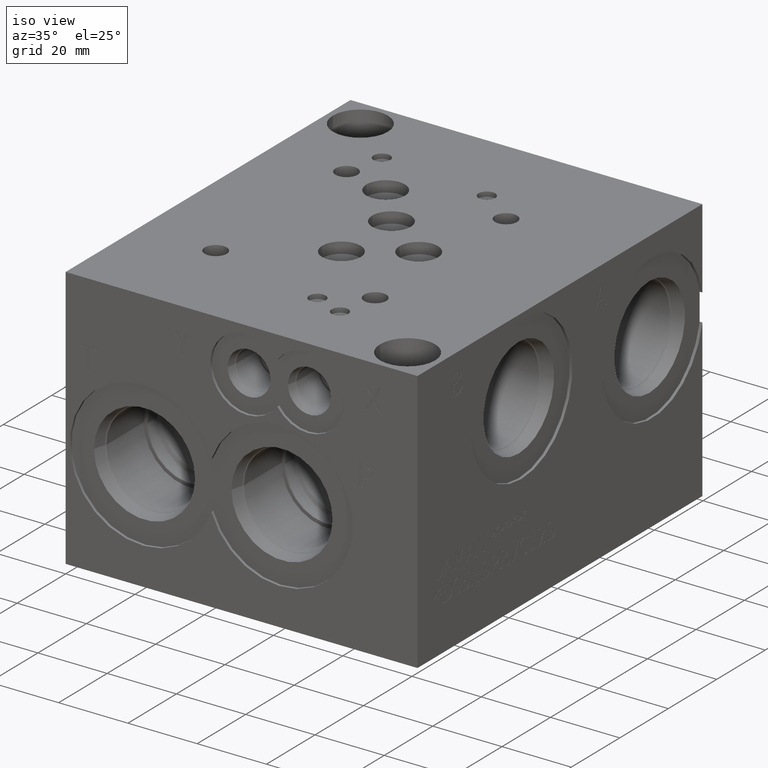
[diagram: clean part render]
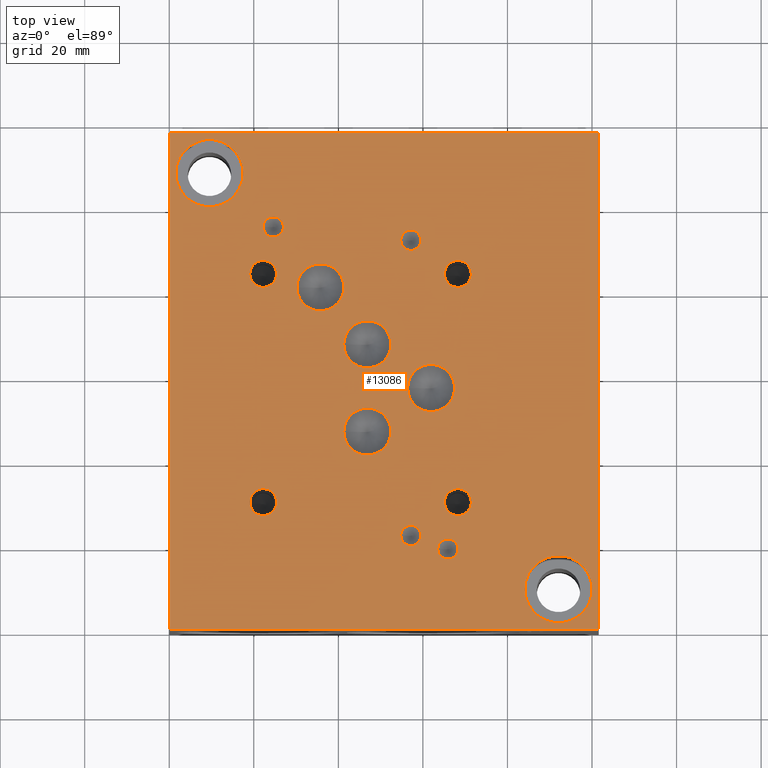
[diagram: tour spotlight — one face highlighted and labeled with its STEP entity id]
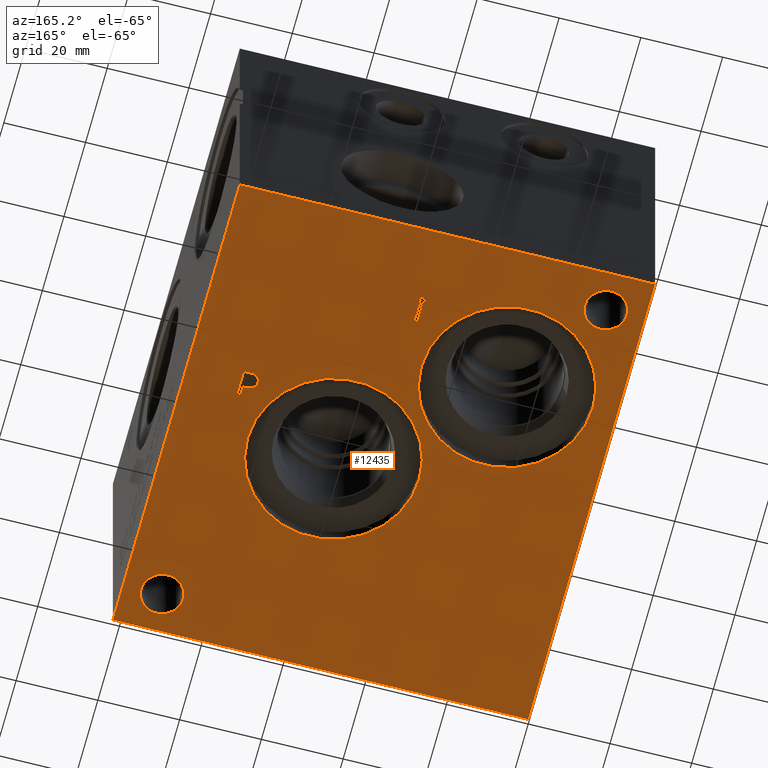
[diagram: tour spotlight — one face highlighted and labeled with its STEP entity id]
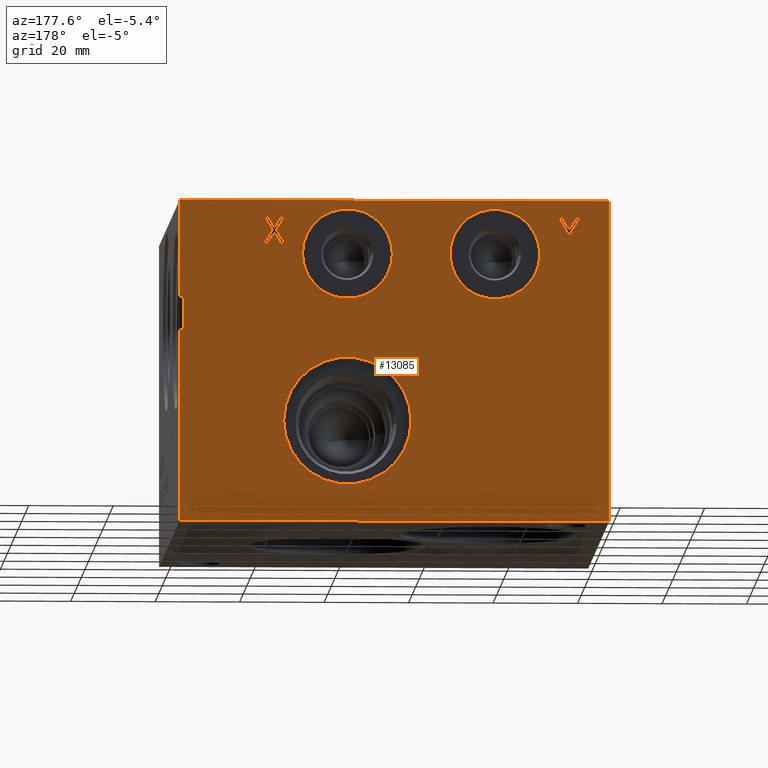
[diagram: tour spotlight — one face highlighted and labeled with its STEP entity id]
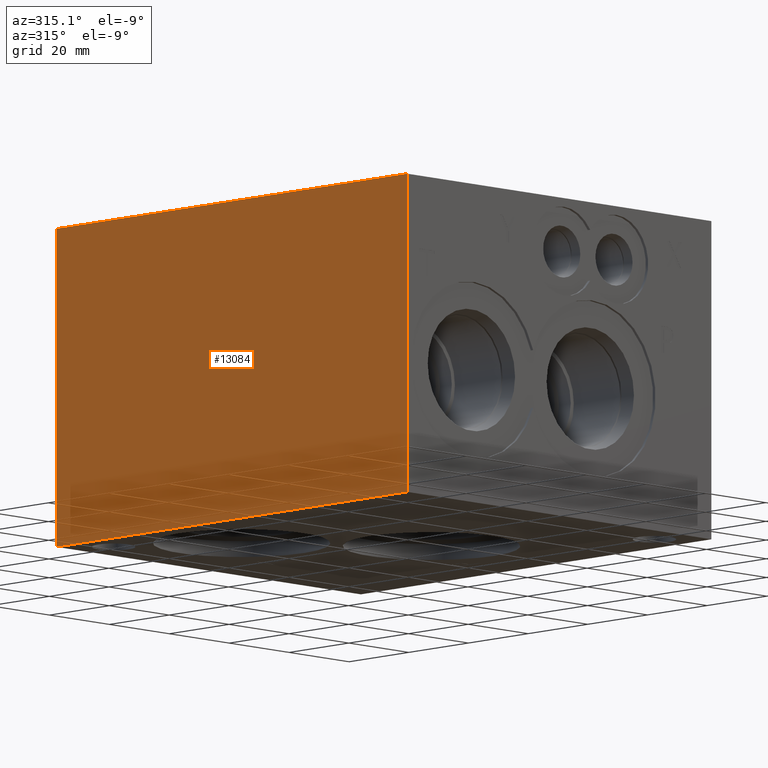
[diagram: tour spotlight — one face highlighted and labeled with its STEP entity id]
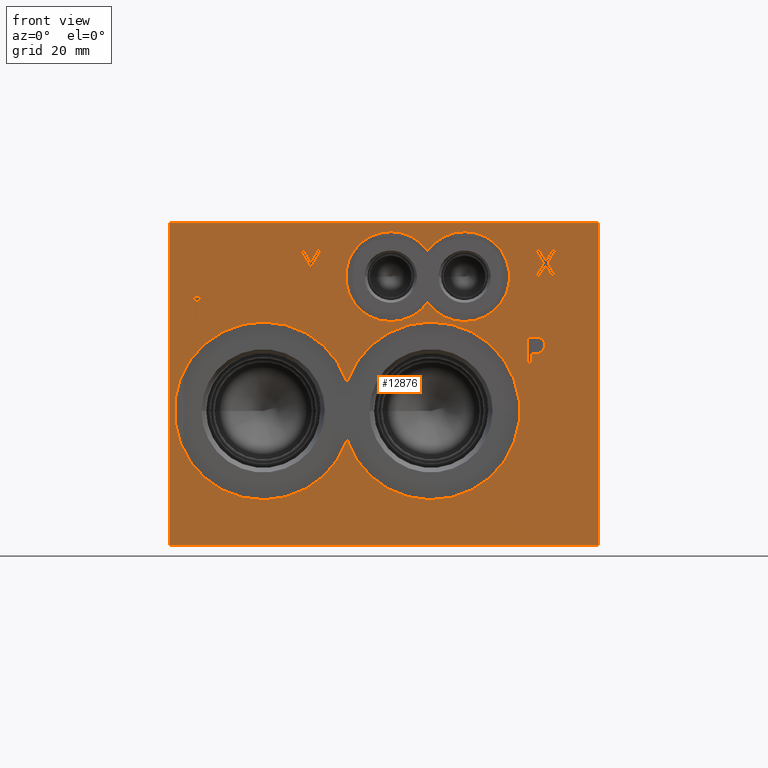
[diagram: tour spotlight — one face highlighted and labeled with its STEP entity id]
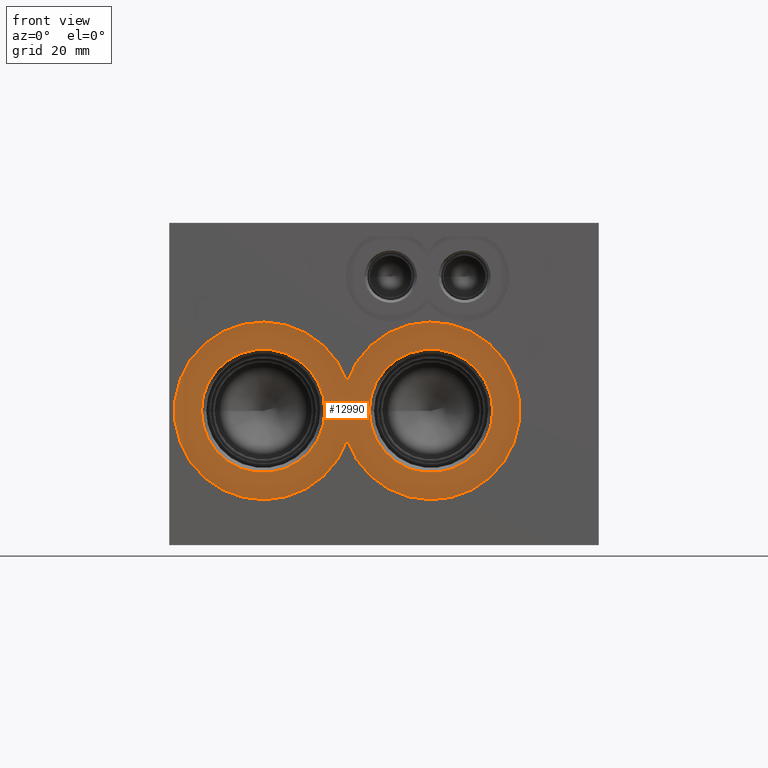
[diagram: tour spotlight — one face highlighted and labeled with its STEP entity id]
A machine part: a face-by-face anatomy tour. The part has 670 B-rep faces; the first image is the clean iso view, then the 6 largest visible faces are spotlighted one at a time (largest first), each with its STEP entity span.

Face 1 — top view, entity #13086. In plain terms, the highlighted planar face has unit normal (0, 0, 1).
Definition (entity closure, byte-faithful):
#297=CIRCLE('',#13703,2.3876);
#298=CIRCLE('',#13704,2.3876);
#301=CIRCLE('',#13709,2.3876);
#302=CIRCLE('',#13710,2.3876);
#305=CIRCLE('',#13715,2.3876);
#306=CIRCLE('',#13716,2.3876);
#309=CIRCLE('',#13721,2.3876);
#310=CIRCLE('',#13722,2.3876);
#313=CIRCLE('',#13727,5.55625);
#314=CIRCLE('',#13728,5.55625);
#317=CIRCLE('',#13733,5.5626);
#318=CIRCLE('',#13734,5.5626);
#321=CIRCLE('',#13739,5.5626);
#322=CIRCLE('',#13740,5.5626);
#325=CIRCLE('',#13745,5.5626);
#326=CIRCLE('',#13746,5.5626);
#332=CIRCLE('',#13755,3.175);
#333=CIRCLE('',#13756,3.175);
#339=CIRCLE('',#13766,3.175);
#340=CIRCLE('',#13767,3.175);
#346=CIRCLE('',#13777,3.175);
#347=CIRCLE('',#13778,3.175);
#353=CIRCLE('',#13788,3.175);
#354=CIRCLE('',#13789,3.175);
#358=CIRCLE('',#13796,7.9375);
#359=CIRCLE('',#13797,7.9375);
#363=CIRCLE('',#13804,7.9375);
#364=CIRCLE('',#13805,7.9375);
#507=FACE_BOUND('',#2333,.T.);
#508=FACE_BOUND('',#2334,.T.);
#509=FACE_BOUND('',#2335,.T.);
#510=FACE_BOUND('',#2336,.T.);
#511=FACE_BOUND('',#2337,.T.);
#512=FACE_BOUND('',#2338,.T.);
#513=FACE_BOUND('',#2339,.T.);
#514=FACE_BOUND('',#2340,.T.);
#515=FACE_BOUND('',#2341,.T.);
#516=FACE_BOUND('',#2342,.T.);
#517=FACE_BOUND('',#2343,.T.);
#518=FACE_BOUND('',#2344,.T.);
#519=FACE_BOUND('',#2345,.T.);
#520=FACE_BOUND('',#2346,.T.);
#910=PLANE('',#13902);
#1580=FACE_OUTER_BOUND('',#2332,.T.);
#2332=EDGE_LOOP('',(#11739,#11740,#11741,#11742));
#2333=EDGE_LOOP('',(#11743,#11744));
#2334=EDGE_LOOP('',(#11745,#11746));
#2335=EDGE_LOOP('',(#11747,#11748));
#2336=EDGE_LOOP('',(#11749,#11750));
#2337=EDGE_LOOP('',(#11751,#11752));
#2338=EDGE_LOOP('',(#11753,#11754));
#2339=EDGE_LOOP('',(#11755,#11756));
#2340=EDGE_LOOP('',(#11757,#11758));
#2341=EDGE_LOOP('',(#11759,#11760));
#2342=EDGE_LOOP('',(#11761,#11762));
#2343=EDGE_LOOP('',(#11763,#11764));
#2344=EDGE_LOOP('',(#11765,#11766));
#2345=EDGE_LOOP('',(#11767,#11768));
#2346=EDGE_LOOP('',(#11769,#11770));
#2808=LINE('',#19675,#4047);
#3321=LINE('',#21236,#4560);
#3584=LINE('',#22354,#4823);
#3586=LINE('',#22357,#4825);
#4047=VECTOR('',#14640,10.);
#4560=VECTOR('',#15523,10.);
#4823=VECTOR('',#16740,10.);
#4825=VECTOR('',#16744,10.);
#5588=VERTEX_POINT('',#19672);
#5589=VERTEX_POINT('',#19674);
#5972=VERTEX_POINT('',#21235);
#6208=VERTEX_POINT('',#21955);
#6209=VERTEX_POINT('',#21956);
#6213=VERTEX_POINT('',#21968);
#6214=VERTEX_POINT('',#21969);
#6218=VERTEX_POINT('',#21981);
#6219=VERTEX_POINT('',#21982);
#6223=VERTEX_POINT('',#21994);
#6224=VERTEX_POINT('',#21995);
#6228=VERTEX_POINT('',#22007);
#6229=VERTEX_POINT('',#22008);
#6233=VERTEX_POINT('',#22020);
#6234=VERTEX_POINT('',#22021);
#6238=VERTEX_POINT('',#22033);
#6239=VERTEX_POINT('',#22034);
#6243=VERTEX_POINT('',#22046);
#6244=VERTEX_POINT('',#22047);
#6251=VERTEX_POINT('',#22066);
#6252=VERTEX_POINT('',#22067);
#6259=VERTEX_POINT('',#22088);
#6260=VERTEX_POINT('',#22089);
#6267=VERTEX_POINT('',#22110);
#6268=VERTEX_POINT('',#22111);
#6275=VERTEX_POINT('',#22132);
#6276=VERTEX_POINT('',#22133);
#6280=VERTEX_POINT('',#22147);
#6281=VERTEX_POINT('',#22148);
#6285=VERTEX_POINT('',#22162);
#6286=VERTEX_POINT('',#22163);
#6350=VERTEX_POINT('',#22353);
#7050=EDGE_CURVE('',#5589,#5588,#2808,.T.);
#7625=EDGE_CURVE('',#5972,#5589,#3321,.T.);
#7971=EDGE_CURVE('',#6208,#6209,#297,.T.);
#7972=EDGE_CURVE('',#6209,#6208,#298,.T.);
#7977=EDGE_CURVE('',#6213,#6214,#301,.T.);
#7978=EDGE_CURVE('',#6214,#6213,#302,.T.);
#7983=EDGE_CURVE('',#6218,#6219,#305,.T.);
#7984=EDGE_CURVE('',#6219,#6218,#306,.T.);
#7989=EDGE_CURVE('',#6223,#6224,#309,.T.);
#7990=EDGE_CURVE('',#6224,#6223,#310,.T.);
#7995=EDGE_CURVE('',#6228,#6229,#313,.T.);
#7996=EDGE_CURVE('',#6229,#6228,#314,.T.);
#8001=EDGE_CURVE('',#6233,#6234,#317,.T.);
#8002=EDGE_CURVE('',#6234,#6233,#318,.T.);
#8007=EDGE_CURVE('',#6238,#6239,#321,.T.);
#8008=EDGE_CURVE('',#6239,#6238,#322,.T.);
#8013=EDGE_CURVE('',#6243,#6244,#325,.T.);
#8014=EDGE_CURVE('',#6244,#6243,#326,.T.);
#8022=EDGE_CURVE('',#6251,#6252,#332,.T.);
#8023=EDGE_CURVE('',#6252,#6251,#333,.T.);
#8032=EDGE_CURVE('',#6259,#6260,#339,.T.);
#8033=EDGE_CURVE('',#6260,#6259,#340,.T.);
#8042=EDGE_CURVE('',#6267,#6268,#346,.T.);
#8043=EDGE_CURVE('',#6268,#6267,#347,.T.);
#8052=EDGE_CURVE('',#6275,#6276,#353,.T.);
#8053=EDGE_CURVE('',#6276,#6275,#354,.T.);
#8059=EDGE_CURVE('',#6280,#6281,#358,.T.);
#8060=EDGE_CURVE('',#6281,#6280,#359,.T.);
#8066=EDGE_CURVE('',#6285,#6286,#363,.T.);
#8067=EDGE_CURVE('',#6286,#6285,#364,.T.);
#8157=EDGE_CURVE('',#6350,#5972,#3584,.T.);
#8159=EDGE_CURVE('',#5588,#6350,#3586,.T.);
#11739=ORIENTED_EDGE('',*,*,#7625,.T.);
#11740=ORIENTED_EDGE('',*,*,#7050,.T.);
#11741=ORIENTED_EDGE('',*,*,#8159,.T.);
#11742=ORIENTED_EDGE('',*,*,#8157,.T.);
#11743=ORIENTED_EDGE('',*,*,#7971,.T.);
#11744=ORIENTED_EDGE('',*,*,#7972,.T.);
#11745=ORIENTED_EDGE('',*,*,#7977,.T.);
#11746=ORIENTED_EDGE('',*,*,#7978,.T.);
#11747=ORIENTED_EDGE('',*,*,#7983,.T.);
#11748=ORIENTED_EDGE('',*,*,#7984,.T.);
#11749=ORIENTED_EDGE('',*,*,#7989,.T.);
#11750=ORIENTED_EDGE('',*,*,#7990,.T.);
#11751=ORIENTED_EDGE('',*,*,#7995,.T.);
#11752=ORIENTED_EDGE('',*,*,#7996,.T.);
#11753=ORIENTED_EDGE('',*,*,#8001,.T.);
#11754=ORIENTED_EDGE('',*,*,#8002,.T.);
#11755=ORIENTED_EDGE('',*,*,#8007,.T.);
#11756=ORIENTED_EDGE('',*,*,#8008,.T.);
#11757=ORIENTED_EDGE('',*,*,#8013,.T.);
#11758=ORIENTED_EDGE('',*,*,#8014,.T.);
#11759=ORIENTED_EDGE('',*,*,#8022,.T.);
#11760=ORIENTED_EDGE('',*,*,#8023,.T.);
#11761=ORIENTED_EDGE('',*,*,#8032,.T.);
#11762=ORIENTED_EDGE('',*,*,#8033,.T.);
#11763=ORIENTED_EDGE('',*,*,#8042,.T.);
#11764=ORIENTED_EDGE('',*,*,#8043,.T.);
#11765=ORIENTED_EDGE('',*,*,#8052,.T.);
#11766=ORIENTED_EDGE('',*,*,#8053,.T.);
#11767=ORIENTED_EDGE('',*,*,#8059,.T.);
#11768=ORIENTED_EDGE('',*,*,#8060,.T.);
#11769=ORIENTED_EDGE('',*,*,#8066,.T.);
#11770=ORIENTED_EDGE('',*,*,#8067,.T.);
#13086=ADVANCED_FACE('',(#1580,#507,#508,#509,#510,#511,#512,#513,#514,
#515,#516,#517,#518,#519,#520),#910,.T.);
#13703=AXIS2_PLACEMENT_3D('',#21957,#16286,#16287);
#13704=AXIS2_PLACEMENT_3D('',#21958,#16288,#16289);
#13709=AXIS2_PLACEMENT_3D('',#21970,#16300,#16301);
#13710=AXIS2_PLACEMENT_3D('',#21971,#16302,#16303);
#13715=AXIS2_PLACEMENT_3D('',#21983,#16314,#16315);
#13716=AXIS2_PLACEMENT_3D('',#21984,#16316,#16317);
#13721=AXIS2_PLACEMENT_3D('',#21996,#16328,#16329);
#13722=AXIS2_PLACEMENT_3D('',#21997,#16330,#16331);
#13727=AXIS2_PLACEMENT_3D('',#22009,#16342,#16343);
#13728=AXIS2_PLACEMENT_3D('',#22010,#16344,#16345);
#13733=AXIS2_PLACEMENT_3D('',#22022,#16356,#16357);
#13734=AXIS2_PLACEMENT_3D('',#22023,#16358,#16359);
#13739=AXIS2_PLACEMENT_3D('',#22035,#16370,#16371);
#13740=AXIS2_PLACEMENT_3D('',#22036,#16372,#16373);
#13745=AXIS2_PLACEMENT_3D('',#22048,#16384,#16385);
#13746=AXIS2_PLACEMENT_3D('',#22049,#16386,#16387);
#13755=AXIS2_PLACEMENT_3D('',#22068,#16406,#16407);
#13756=AXIS2_PLACEMENT_3D('',#22069,#16408,#16409);
#13766=AXIS2_PLACEMENT_3D('',#22090,#16431,#16432);
#13767=AXIS2_PLACEMENT_3D('',#22091,#16433,#16434);
#13777=AXIS2_PLACEMENT_3D('',#22112,#16456,#16457);
#13778=AXIS2_PLACEMENT_3D('',#22113,#16458,#16459);
#13788=AXIS2_PLACEMENT_3D('',#22134,#16481,#16482);
#13789=AXIS2_PLACEMENT_3D('',#22135,#16483,#16484);
#13796=AXIS2_PLACEMENT_3D('',#22149,#16499,#16500);
#13797=AXIS2_PLACEMENT_3D('',#22150,#16501,#16502);
#13804=AXIS2_PLACEMENT_3D('',#22164,#16517,#16518);
#13805=AXIS2_PLACEMENT_3D('',#22165,#16519,#16520);
#13902=AXIS2_PLACEMENT_3D('',#22358,#16745,#16746);
#14640=DIRECTION('',(0.,1.,0.));
#15523=DIRECTION('',(1.,0.,0.));
#16286=DIRECTION('center_axis',(0.,0.,-1.));
#16287=DIRECTION('ref_axis',(1.,0.,0.));
#16288=DIRECTION('center_axis',(0.,0.,-1.));
#16289=DIRECTION('ref_axis',(1.,0.,0.));
#16300=DIRECTION('center_axis',(0.,0.,-1.));
#16301=DIRECTION('ref_axis',(1.,0.,0.));
#16302=DIRECTION('center_axis',(0.,0.,-1.));
#16303=DIRECTION('ref_axis',(1.,0.,0.));
#16314=DIRECTION('center_axis',(0.,0.,-1.));
#16315=DIRECTION('ref_axis',(1.,0.,0.));
#16316=DIRECTION('center_axis',(0.,0.,-1.));
#16317=DIRECTION('ref_axis',(1.,0.,0.));
#16328=DIRECTION('center_axis',(0.,0.,-1.));
#16329=DIRECTION('ref_axis',(1.,0.,0.));
#16330=DIRECTION('center_axis',(0.,0.,-1.));
#16331=DIRECTION('ref_axis',(1.,0.,0.));
#16342=DIRECTION('center_axis',(0.,0.,-1.));
#16343=DIRECTION('ref_axis',(1.,0.,0.));
#16344=DIRECTION('center_axis',(0.,0.,-1.));
#16345=DIRECTION('ref_axis',(1.,0.,0.));
#16356=DIRECTION('center_axis',(0.,0.,-1.));
#16357=DIRECTION('ref_axis',(1.,0.,0.));
#16358=DIRECTION('center_axis',(0.,0.,-1.));
#16359=DIRECTION('ref_axis',(1.,0.,0.));
#16370=DIRECTION('center_axis',(0.,0.,-1.));
#16371=DIRECTION('ref_axis',(1.,0.,0.));
#16372=DIRECTION('center_axis',(0.,0.,-1.));
#16373=DIRECTION('ref_axis',(1.,0.,0.));
#16384=DIRECTION('center_axis',(0.,0.,-1.));
#16385=DIRECTION('ref_axis',(1.,0.,0.));
#16386=DIRECTION('center_axis',(0.,0.,-1.));
#16387=DIRECTION('ref_axis',(1.,0.,0.));
#16406=DIRECTION('center_axis',(0.,0.,-1.));
#16407=DIRECTION('ref_axis',(1.,0.,0.));
#16408=DIRECTION('center_axis',(0.,0.,-1.));
#16409=DIRECTION('ref_axis',(1.,0.,0.));
#16431=DIRECTION('center_axis',(0.,0.,-1.));
#16432=DIRECTION('ref_axis',(1.,0.,0.));
#16433=DIRECTION('center_axis',(0.,0.,-1.));
#16434=DIRECTION('ref_axis',(1.,0.,0.));
#16456=DIRECTION('center_axis',(0.,0.,-1.));
#16457=DIRECTION('ref_axis',(1.,0.,0.));
#16458=DIRECTION('center_axis',(0.,0.,-1.));
#16459=DIRECTION('ref_axis',(1.,0.,0.));
#16481=DIRECTION('center_axis',(0.,0.,-1.));
#16482=DIRECTION('ref_axis',(1.,0.,0.));
#16483=DIRECTION('center_axis',(0.,0.,-1.));
#16484=DIRECTION('ref_axis',(1.,0.,0.));
#16499=DIRECTION('center_axis',(0.,0.,-1.));
#16500=DIRECTION('ref_axis',(1.,0.,0.));
#16501=DIRECTION('center_axis',(0.,0.,-1.));
#16502=DIRECTION('ref_axis',(1.,0.,0.));
#16517=DIRECTION('center_axis',(0.,0.,-1.));
#16518=DIRECTION('ref_axis',(1.,0.,0.));
#16519=DIRECTION('center_axis',(0.,0.,-1.));
#16520=DIRECTION('ref_axis',(1.,0.,0.));
#16740=DIRECTION('',(0.,-1.,0.));
#16744=DIRECTION('',(-1.,0.,0.));
#16745=DIRECTION('center_axis',(0.,0.,1.));
#16746=DIRECTION('ref_axis',(1.,0.,0.));
#19672=CARTESIAN_POINT('',(101.6,117.475,76.2));
#19674=CARTESIAN_POINT('',(101.6,0.,76.2));
#19675=CARTESIAN_POINT('',(101.6,0.,76.2));
#21235=CARTESIAN_POINT('',(0.,0.,76.2));
#21236=CARTESIAN_POINT('',(0.,0.,76.2));
#21955=CARTESIAN_POINT('',(59.5376,92.075,76.2));
#21956=CARTESIAN_POINT('',(54.7624,92.075,76.2));
#21957=CARTESIAN_POINT('Origin',(57.15,92.075,76.2));
#21958=CARTESIAN_POINT('Origin',(57.15,92.075,76.2));
#21968=CARTESIAN_POINT('',(68.2879,19.0373,76.2));
#21969=CARTESIAN_POINT('',(63.5127,19.0373,76.2));
#21970=CARTESIAN_POINT('Origin',(65.9003,19.0373,76.2));
#21971=CARTESIAN_POINT('Origin',(65.9003,19.0373,76.2));
#21981=CARTESIAN_POINT('',(27.0129,95.2373,76.2));
#21982=CARTESIAN_POINT('',(22.2377,95.2373,76.2));
#21983=CARTESIAN_POINT('Origin',(24.6253,95.2373,76.2));
#21984=CARTESIAN_POINT('Origin',(24.6253,95.2373,76.2));
#21994=CARTESIAN_POINT('',(59.5376,22.225,76.2));
#21995=CARTESIAN_POINT('',(54.7624,22.225,76.2));
#21996=CARTESIAN_POINT('Origin',(57.15,22.225,76.2));
#21997=CARTESIAN_POINT('Origin',(57.15,22.225,76.2));
#22007=CARTESIAN_POINT('',(41.30167,80.9498,76.2));
#22008=CARTESIAN_POINT('',(30.18917,80.9498,76.2));
#22009=CARTESIAN_POINT('Origin',(35.74542,80.9498,76.2));
#22010=CARTESIAN_POINT('Origin',(35.74542,80.9498,76.2));
#22020=CARTESIAN_POINT('',(52.4129,67.45478,76.2));
#22021=CARTESIAN_POINT('',(41.2877,67.45478,76.2));
#22022=CARTESIAN_POINT('Origin',(46.8503,67.45478,76.2));
#22023=CARTESIAN_POINT('Origin',(46.8503,67.45478,76.2));
#22033=CARTESIAN_POINT('',(67.5132,57.1373,76.2));
#22034=CARTESIAN_POINT('',(56.388,57.1373,76.2));
#22035=CARTESIAN_POINT('Origin',(61.9506,57.1373,76.2));
#22036=CARTESIAN_POINT('Origin',(61.9506,57.1373,76.2));
#22046=CARTESIAN_POINT('',(52.41798,46.81982,76.2));
#22047=CARTESIAN_POINT('',(41.29278,46.81982,76.2));
#22048=CARTESIAN_POINT('Origin',(46.85538,46.81982,76.2));
#22049=CARTESIAN_POINT('Origin',(46.85538,46.81982,76.2));
#22066=CARTESIAN_POINT('',(71.4502,30.1371,76.2));
#22067=CARTESIAN_POINT('',(65.1002,30.1371,76.2));
#22068=CARTESIAN_POINT('Origin',(68.2752,30.1371,76.2));
#22069=CARTESIAN_POINT('Origin',(68.2752,30.1371,76.2));
#22088=CARTESIAN_POINT('',(25.4,84.1248,76.2));
#22089=CARTESIAN_POINT('',(19.05,84.1248,76.2));
#22090=CARTESIAN_POINT('Origin',(22.225,84.1248,76.2));
#22091=CARTESIAN_POINT('Origin',(22.225,84.1248,76.2));
#22110=CARTESIAN_POINT('',(71.4502,84.1121,76.2));
#22111=CARTESIAN_POINT('',(65.1002,84.1121,76.2));
#22112=CARTESIAN_POINT('Origin',(68.2752,84.1121,76.2));
#22113=CARTESIAN_POINT('Origin',(68.2752,84.1121,76.2));
#22132=CARTESIAN_POINT('',(25.4127,30.1371,76.2));
#22133=CARTESIAN_POINT('',(19.0627,30.1371,76.2));
#22134=CARTESIAN_POINT('Origin',(22.2377,30.1371,76.2));
#22135=CARTESIAN_POINT('Origin',(22.2377,30.1371,76.2));
#22147=CARTESIAN_POINT('',(17.4625,107.95,76.2));
#22148=CARTESIAN_POINT('',(1.5875,107.95,76.2));
#22149=CARTESIAN_POINT('Origin',(9.525,107.95,76.2));
#22150=CARTESIAN_POINT('Origin',(9.525,107.95,76.2));
#22162=CARTESIAN_POINT('',(100.0125,9.525,76.2));
#22163=CARTESIAN_POINT('',(84.1375,9.525,76.2));
#22164=CARTESIAN_POINT('Origin',(92.075,9.525,76.2));
#22165=CARTESIAN_POINT('Origin',(92.075,9.525,76.2));
#22353=CARTESIAN_POINT('',(0.,117.475,76.2));
#22354=CARTESIAN_POINT('',(0.,117.475,76.2));
#22357=CARTESIAN_POINT('',(101.6,117.475,76.2));
#22358=CARTESIAN_POINT('Origin',(50.8,58.7375,76.2));

Face 2 — auxiliary view, entity #12435. In plain terms, the highlighted planar face has unit normal (0, 0, 1).
Definition (entity closure, byte-faithful):
#147=CIRCLE('',#13112,5.1562);
#148=CIRCLE('',#13113,5.1562);
#149=CIRCLE('',#13114,21.0185);
#150=CIRCLE('',#13115,21.0185);
#151=CIRCLE('',#13116,21.0185);
#152=CIRCLE('',#13117,21.0185);
#426=FACE_BOUND('',#1601,.T.);
#427=FACE_BOUND('',#1602,.T.);
#428=FACE_BOUND('',#1603,.T.);
#429=FACE_BOUND('',#1604,.T.);
#430=FACE_BOUND('',#1605,.T.);
#431=FACE_BOUND('',#1606,.T.);
#530=PLANE('',#13111);
#929=FACE_OUTER_BOUND('',#1600,.T.);
#1600=EDGE_LOOP('',(#8240,#8241,#8242,#8243));
#1601=EDGE_LOOP('',(#8244));
#1602=EDGE_LOOP('',(#8245));
#1603=EDGE_LOOP('',(#8246,#8247));
#1604=EDGE_LOOP('',(#8248,#8249));
#1605=EDGE_LOOP('',(#8250,#8251,#8252,#8253,#8254,#8255,#8256,#8257));
#1606=EDGE_LOOP('',(#8258,#8259,#8260,#8261,#8262,#8263,#8264,#8265,#8266));
#2364=LINE('',#16887,#3603);
#2367=LINE('',#16893,#3606);
#2370=LINE('',#16899,#3609);
#2373=LINE('',#16905,#3612);
#2376=LINE('',#16911,#3615);
#2380=LINE('',#16954,#3619);
#2381=LINE('',#16956,#3620);
#2382=LINE('',#16958,#3621);
#2383=LINE('',#16959,#3622);
#2384=LINE('',#16974,#3623);
#2385=LINE('',#16976,#3624);
#2386=LINE('',#16978,#3625);
#2387=LINE('',#16980,#3626);
#2388=LINE('',#16982,#3627);
#2389=LINE('',#16984,#3628);
#2390=LINE('',#16986,#3629);
#2391=LINE('',#16987,#3630);
#3603=VECTOR('',#13930,10.);
#3606=VECTOR('',#13935,10.);
#3609=VECTOR('',#13940,10.);
#3612=VECTOR('',#13945,10.);
#3615=VECTOR('',#13950,10.);
#3619=VECTOR('',#13958,10.);
#3620=VECTOR('',#13959,10.);
#3621=VECTOR('',#13960,10.);
#3622=VECTOR('',#13961,10.);
#3623=VECTOR('',#13974,10.);
#3624=VECTOR('',#13975,10.);
#3625=VECTOR('',#13976,10.);
#3626=VECTOR('',#13977,10.);
#3627=VECTOR('',#13978,10.);
#3628=VECTOR('',#13979,10.);
#3629=VECTOR('',#13980,10.);
#3630=VECTOR('',#13981,10.);
#4834=B_SPLINE_CURVE_WITH_KNOTS('',2,(#16854,#16855,#16856,#16857),
 .UNSPECIFIED.,.F.,.F.,(3,1,3),(0.,1.,2.),.UNSPECIFIED.);
#4836=B_SPLINE_CURVE_WITH_KNOTS('',2,(#16875,#16876,#16877,#16878),
 .UNSPECIFIED.,.F.,.F.,(3,1,3),(0.,1.,2.),.UNSPECIFIED.);
#4838=B_SPLINE_CURVE_WITH_KNOTS('',2,(#16924,#16925,#16926,#16927),
 .UNSPECIFIED.,.F.,.F.,(3,1,3),(0.,1.,2.),.UNSPECIFIED.);
#4840=B_SPLINE_CURVE_WITH_KNOTS('',2,(#16942,#16943,#16944,#16945),
 .UNSPECIFIED.,.F.,.F.,(3,1,3),(0.,1.,2.),.UNSPECIFIED.);
#5132=VERTEX_POINT('',#16852);
#5133=VERTEX_POINT('',#16853);
#5136=VERTEX_POINT('',#16874);
#5138=VERTEX_POINT('',#16886);
#5140=VERTEX_POINT('',#16892);
#5142=VERTEX_POINT('',#16898);
#5144=VERTEX_POINT('',#16904);
#5146=VERTEX_POINT('',#16910);
#5148=VERTEX_POINT('',#16923);
#5150=VERTEX_POINT('',#16952);
#5151=VERTEX_POINT('',#16953);
#5152=VERTEX_POINT('',#16955);
#5153=VERTEX_POINT('',#16957);
#5154=VERTEX_POINT('',#16960);
#5155=VERTEX_POINT('',#16962);
#5156=VERTEX_POINT('',#16964);
#5157=VERTEX_POINT('',#16965);
#5158=VERTEX_POINT('',#16968);
#5159=VERTEX_POINT('',#16969);
#5160=VERTEX_POINT('',#16972);
#5161=VERTEX_POINT('',#16973);
#5162=VERTEX_POINT('',#16975);
#5163=VERTEX_POINT('',#16977);
#5164=VERTEX_POINT('',#16979);
#5165=VERTEX_POINT('',#16981);
#5166=VERTEX_POINT('',#16983);
#5167=VERTEX_POINT('',#16985);
#6372=EDGE_CURVE('',#5132,#5133,#4834,.T.);
#6376=EDGE_CURVE('',#5136,#5132,#4836,.T.);
#6379=EDGE_CURVE('',#5138,#5136,#2364,.T.);
#6382=EDGE_CURVE('',#5140,#5138,#2367,.T.);
#6385=EDGE_CURVE('',#5142,#5140,#2370,.T.);
#6388=EDGE_CURVE('',#5144,#5142,#2373,.T.);
#6391=EDGE_CURVE('',#5146,#5144,#2376,.T.);
#6394=EDGE_CURVE('',#5148,#5146,#4838,.T.);
#6397=EDGE_CURVE('',#5133,#5148,#4840,.T.);
#6399=EDGE_CURVE('',#5150,#5151,#2380,.T.);
#6400=EDGE_CURVE('',#5152,#5150,#2381,.T.);
#6401=EDGE_CURVE('',#5153,#5152,#2382,.T.);
#6402=EDGE_CURVE('',#5151,#5153,#2383,.T.);
#6403=EDGE_CURVE('',#5154,#5154,#147,.T.);
#6404=EDGE_CURVE('',#5155,#5155,#148,.T.);
#6405=EDGE_CURVE('',#5156,#5157,#149,.T.);
#6406=EDGE_CURVE('',#5157,#5156,#150,.T.);
#6407=EDGE_CURVE('',#5158,#5159,#151,.T.);
#6408=EDGE_CURVE('',#5159,#5158,#152,.T.);
#6409=EDGE_CURVE('',#5160,#5161,#2384,.T.);
#6410=EDGE_CURVE('',#5161,#5162,#2385,.T.);
#6411=EDGE_CURVE('',#5162,#5163,#2386,.T.);
#6412=EDGE_CURVE('',#5163,#5164,#2387,.T.);
#6413=EDGE_CURVE('',#5164,#5165,#2388,.T.);
#6414=EDGE_CURVE('',#5165,#5166,#2389,.T.);
#6415=EDGE_CURVE('',#5166,#5167,#2390,.T.);
#6416=EDGE_CURVE('',#5167,#5160,#2391,.T.);
#8240=ORIENTED_EDGE('',*,*,#6399,.F.);
#8241=ORIENTED_EDGE('',*,*,#6400,.F.);
#8242=ORIENTED_EDGE('',*,*,#6401,.F.);
#8243=ORIENTED_EDGE('',*,*,#6402,.F.);
#8244=ORIENTED_EDGE('',*,*,#6403,.T.);
#8245=ORIENTED_EDGE('',*,*,#6404,.T.);
#8246=ORIENTED_EDGE('',*,*,#6405,.T.);
#8247=ORIENTED_EDGE('',*,*,#6406,.T.);
#8248=ORIENTED_EDGE('',*,*,#6407,.T.);
#8249=ORIENTED_EDGE('',*,*,#6408,.T.);
#8250=ORIENTED_EDGE('',*,*,#6409,.T.);
#8251=ORIENTED_EDGE('',*,*,#6410,.T.);
#8252=ORIENTED_EDGE('',*,*,#6411,.T.);
#8253=ORIENTED_EDGE('',*,*,#6412,.T.);
#8254=ORIENTED_EDGE('',*,*,#6413,.T.);
#8255=ORIENTED_EDGE('',*,*,#6414,.T.);
#8256=ORIENTED_EDGE('',*,*,#6415,.T.);
#8257=ORIENTED_EDGE('',*,*,#6416,.T.);
#8258=ORIENTED_EDGE('',*,*,#6372,.T.);
#8259=ORIENTED_EDGE('',*,*,#6397,.T.);
#8260=ORIENTED_EDGE('',*,*,#6394,.T.);
#8261=ORIENTED_EDGE('',*,*,#6391,.T.);
#8262=ORIENTED_EDGE('',*,*,#6388,.T.);
#8263=ORIENTED_EDGE('',*,*,#6385,.T.);
#8264=ORIENTED_EDGE('',*,*,#6382,.T.);
#8265=ORIENTED_EDGE('',*,*,#6379,.T.);
#8266=ORIENTED_EDGE('',*,*,#6376,.T.);
#12435=ADVANCED_FACE('',(#929,#426,#427,#428,#429,#430,#431),#530,.F.);
#13111=AXIS2_PLACEMENT_3D('',#16951,#13956,#13957);
#13112=AXIS2_PLACEMENT_3D('',#16961,#13962,#13963);
#13113=AXIS2_PLACEMENT_3D('',#16963,#13964,#13965);
#13114=AXIS2_PLACEMENT_3D('',#16966,#13966,#13967);
#13115=AXIS2_PLACEMENT_3D('',#16967,#13968,#13969);
#13116=AXIS2_PLACEMENT_3D('',#16970,#13970,#13971);
#13117=AXIS2_PLACEMENT_3D('',#16971,#13972,#13973);
#13930=DIRECTION('',(-1.,0.,0.));
#13935=DIRECTION('',(-2.79741238752512E-15,1.,0.));
#13940=DIRECTION('',(1.,0.,0.));
#13945=DIRECTION('',(0.,-1.,0.));
#13950=DIRECTION('',(1.,0.,0.));
#13956=DIRECTION('center_axis',(0.,0.,1.));
#13957=DIRECTION('ref_axis',(1.,0.,0.));
#13958=DIRECTION('',(1.,0.,0.));
#13959=DIRECTION('',(0.,-1.,0.));
#13960=DIRECTION('',(-1.,0.,0.));
#13961=DIRECTION('',(0.,1.,0.));
#13962=DIRECTION('center_axis',(0.,0.,1.));
#13963=DIRECTION('ref_axis',(1.,0.,0.));
#13964=DIRECTION('center_axis',(0.,0.,1.));
#13965=DIRECTION('ref_axis',(1.,0.,0.));
#13966=DIRECTION('center_axis',(0.,0.,1.));
#13967=DIRECTION('ref_axis',(1.,0.,0.));
#13968=DIRECTION('center_axis',(0.,0.,1.));
#13969=DIRECTION('ref_axis',(1.,0.,0.));
#13970=DIRECTION('center_axis',(0.,0.,1.));
#13971=DIRECTION('ref_axis',(1.,0.,0.));
#13972=DIRECTION('center_axis',(0.,0.,1.));
#13973=DIRECTION('ref_axis',(1.,0.,0.));
#13974=DIRECTION('',(1.,0.,0.));
#13975=DIRECTION('',(-3.17280044688052E-15,1.,0.));
#13976=DIRECTION('',(1.,0.,0.));
#13977=DIRECTION('',(0.,1.,0.));
#13978=DIRECTION('',(-1.,-3.47984565141734E-15,0.));
#13979=DIRECTION('',(0.,-1.,0.));
#13980=DIRECTION('',(1.,0.,0.));
#13981=DIRECTION('',(3.17280044688052E-15,-1.,0.));
#16852=CARTESIAN_POINT('',(84.9994327976406,70.2475181439707,0.));
#16853=CARTESIAN_POINT('',(84.242990345468,68.7294873726039,0.));
#16854=CARTESIAN_POINT('Ctrl Pts',(84.9994327976406,70.2475181439707,0.));
#16855=CARTESIAN_POINT('Ctrl Pts',(84.6443679731514,70.0056623939564,0.));
#16856=CARTESIAN_POINT('Ctrl Pts',(84.242990345468,69.2595116758269,0.));
#16857=CARTESIAN_POINT('Ctrl Pts',(84.242990345468,68.7294873726039,0.));
#16874=CARTESIAN_POINT('',(86.6615478456117,70.6437499046326,0.));
#16875=CARTESIAN_POINT('Ctrl Pts',(86.6615478456117,70.6437499046326,0.));
#16876=CARTESIAN_POINT('Ctrl Pts',(86.0955024732376,70.6437499046326,0.));
#16877=CARTESIAN_POINT('Ctrl Pts',(85.3030389519139,70.4584986918556,0.));
#16878=CARTESIAN_POINT('Ctrl Pts',(84.9994327976406,70.2475181439707,0.));
#16886=CARTESIAN_POINT('',(88.2567666223022,70.6437499046326,0.));
#16887=CARTESIAN_POINT('',(69.5283833111511,70.6437499046326,0.));
#16892=CARTESIAN_POINT('',(88.2567666223022,64.29375,0.));
#16893=CARTESIAN_POINT('',(88.2567666223022,61.5156250000001,0.));
#16898=CARTESIAN_POINT('',(87.4128444307627,64.29375,0.));
#16899=CARTESIAN_POINT('',(69.1064222153814,64.29375,0.));
#16904=CARTESIAN_POINT('',(87.4128444307627,66.6608488299279,0.));
#16905=CARTESIAN_POINT('',(87.4128444307627,62.6991744149639,0.));
#16910=CARTESIAN_POINT('',(86.6975689147628,66.6608488299279,0.));
#16911=CARTESIAN_POINT('',(68.7487844573814,66.6608488299279,0.));
#16923=CARTESIAN_POINT('',(84.7987439837989,67.3195198086904,0.));
#16924=CARTESIAN_POINT('Ctrl Pts',(84.7987439837989,67.3195198086904,0.));
#16925=CARTESIAN_POINT('Ctrl Pts',(85.1280794731802,66.9953301863307,0.));
#16926=CARTESIAN_POINT('Ctrl Pts',(86.0183144679139,66.6608488299279,0.));
#16927=CARTESIAN_POINT('Ctrl Pts',(86.6975689147628,66.6608488299279,0.));
#16942=CARTESIAN_POINT('Ctrl Pts',(84.242990345468,68.7294873726039,0.));
#16943=CARTESIAN_POINT('Ctrl Pts',(84.242990345468,68.3178180108774,0.));
#16944=CARTESIAN_POINT('Ctrl Pts',(84.5363047656982,67.5768131597695,0.));
#16945=CARTESIAN_POINT('Ctrl Pts',(84.7987439837989,67.3195198086904,0.));
#16951=CARTESIAN_POINT('Origin',(50.8,58.7375,0.));
#16952=CARTESIAN_POINT('',(0.,0.,0.));
#16953=CARTESIAN_POINT('',(101.6,0.,0.));
#16954=CARTESIAN_POINT('',(0.,0.,0.));
#16955=CARTESIAN_POINT('',(0.,117.475,0.));
#16956=CARTESIAN_POINT('',(0.,117.475,0.));
#16957=CARTESIAN_POINT('',(101.6,117.475,0.));
#16958=CARTESIAN_POINT('',(101.6,117.475,0.));
#16959=CARTESIAN_POINT('',(101.6,0.,0.));
#16960=CARTESIAN_POINT('',(86.9188,9.525,0.));
#16961=CARTESIAN_POINT('Origin',(92.075,9.525,0.));
#16962=CARTESIAN_POINT('',(4.3688,107.95,0.));
#16963=CARTESIAN_POINT('Origin',(9.525,107.95,0.));
#16964=CARTESIAN_POINT('',(47.9933,82.55,0.));
#16965=CARTESIAN_POINT('',(5.9563,82.55,0.));
#16966=CARTESIAN_POINT('Origin',(26.9748,82.55,0.));
#16967=CARTESIAN_POINT('Origin',(26.9748,82.55,0.));
#16968=CARTESIAN_POINT('',(82.9437,53.975,0.));
#16969=CARTESIAN_POINT('',(40.9067,53.975,0.));
#16970=CARTESIAN_POINT('Origin',(61.9252,53.975,0.));
#16971=CARTESIAN_POINT('Origin',(61.9252,53.975,0.));
#16972=CARTESIAN_POINT('',(51.799584728547,93.6625,0.));
#16973=CARTESIAN_POINT('',(52.6435069200865,93.6625,0.));
#16974=CARTESIAN_POINT('',(51.2997923642735,93.6625,0.));
#16975=CARTESIAN_POINT('',(52.6435069200865,99.2612033194816,0.));
#16976=CARTESIAN_POINT('',(52.6435069200866,76.2,0.));
#16977=CARTESIAN_POINT('',(54.7738958670216,99.2612033194816,0.));
#16978=CARTESIAN_POINT('',(51.7217534600432,99.2612033194816,0.));
#16979=CARTESIAN_POINT('',(54.7738958670216,100.012499904633,0.));
#16980=CARTESIAN_POINT('',(54.7738958670215,78.9993516597408,0.));
#16981=CARTESIAN_POINT('',(49.6691957816119,100.012499904633,0.));
#16982=CARTESIAN_POINT('',(52.7869479335107,100.012499904633,0.));
#16983=CARTESIAN_POINT('',(49.6691957816119,99.2612033194816,0.));
#16984=CARTESIAN_POINT('',(49.6691957816119,79.3749999523163,0.));
#16985=CARTESIAN_POINT('',(51.799584728547,99.2612033194816,0.));
#16986=CARTESIAN_POINT('',(50.234597890806,99.2612033194816,0.));
#16987=CARTESIAN_POINT('',(51.799584728547,78.9993516597408,0.));

Face 3 — auxiliary view, entity #13085. In plain terms, the highlighted planar face has unit normal (0, 1, 0).
Definition (entity closure, byte-faithful):
#365=CIRCLE('',#13808,10.6426);
#366=CIRCLE('',#13809,10.6426);
#391=CIRCLE('',#13850,10.6426);
#392=CIRCLE('',#13851,10.6426);
#399=CIRCLE('',#13862,15.08);
#400=CIRCLE('',#13863,15.08);
#502=FACE_BOUND('',#2327,.T.);
#503=FACE_BOUND('',#2328,.T.);
#504=FACE_BOUND('',#2329,.T.);
#505=FACE_BOUND('',#2330,.T.);
#506=FACE_BOUND('',#2331,.T.);
#909=PLANE('',#13901);
#1579=FACE_OUTER_BOUND('',#2326,.T.);
#2326=EDGE_LOOP('',(#11704,#11705,#11706,#11707,#11708,#11709,#11710,#11711));
#2327=EDGE_LOOP('',(#11712,#11713,#11714,#11715,#11716,#11717,#11718,#11719,
#11720));
#2328=EDGE_LOOP('',(#11721,#11722,#11723,#11724,#11725,#11726,#11727,#11728,
#11729,#11730,#11731,#11732));
#2329=EDGE_LOOP('',(#11733,#11734));
#2330=EDGE_LOOP('',(#11735,#11736));
#2331=EDGE_LOOP('',(#11737,#11738));
#2382=LINE('',#16958,#3621);
#2807=LINE('',#19673,#4046);
#2810=LINE('',#19677,#4049);
#3386=LINE('',#21377,#4625);
#3390=LINE('',#21385,#4629);
#3393=LINE('',#21391,#4632);
#3396=LINE('',#21397,#4635);
#3399=LINE('',#21403,#4638);
#3402=LINE('',#21409,#4641);
#3405=LINE('',#21415,#4644);
#3408=LINE('',#21421,#4647);
#3411=LINE('',#21426,#4650);
#3413=LINE('',#21432,#4652);
#3417=LINE('',#21440,#4656);
#3420=LINE('',#21446,#4659);
#3423=LINE('',#21452,#4662);
#3426=LINE('',#21458,#4665);
#3429=LINE('',#21464,#4668);
#3432=LINE('',#21470,#4671);
#3435=LINE('',#21476,#4674);
#3438=LINE('',#21482,#4677);
#3441=LINE('',#21488,#4680);
#3444=LINE('',#21494,#4683);
#3447=LINE('',#21499,#4686);
#3485=LINE('',#21723,#4724);
#3486=LINE('',#21726,#4725);
#3487=LINE('',#21728,#4726);
#3585=LINE('',#22355,#4824);
#3586=LINE('',#22357,#4825);
#3621=VECTOR('',#13960,10.);
#4046=VECTOR('',#14639,10.);
#4049=VECTOR('',#14642,10.);
#4625=VECTOR('',#15644,10.);
#4629=VECTOR('',#15650,10.);
#4632=VECTOR('',#15655,10.);
#4635=VECTOR('',#15660,10.);
#4638=VECTOR('',#15665,10.);
#4641=VECTOR('',#15670,10.);
#4644=VECTOR('',#15675,10.);
#4647=VECTOR('',#15680,10.);
#4650=VECTOR('',#15685,10.);
#4652=VECTOR('',#15691,10.);
#4656=VECTOR('',#15697,10.);
#4659=VECTOR('',#15702,10.);
#4662=VECTOR('',#15707,10.);
#4665=VECTOR('',#15712,10.);
#4668=VECTOR('',#15717,10.);
#4671=VECTOR('',#15722,10.);
#4674=VECTOR('',#15727,10.);
#4677=VECTOR('',#15732,10.);
#4680=VECTOR('',#15737,10.);
#4683=VECTOR('',#15742,10.);
#4686=VECTOR('',#15747,10.);
#4724=VECTOR('',#16011,10.);
#4725=VECTOR('',#16014,10.);
#4726=VECTOR('',#16017,10.);
#4824=VECTOR('',#16741,10.);
#4825=VECTOR('',#16744,10.);
#5152=VERTEX_POINT('',#16955);
#5153=VERTEX_POINT('',#16957);
#5586=VERTEX_POINT('',#19669);
#5587=VERTEX_POINT('',#19670);
#5588=VERTEX_POINT('',#19672);
#6019=VERTEX_POINT('',#21375);
#6020=VERTEX_POINT('',#21376);
#6023=VERTEX_POINT('',#21384);
#6025=VERTEX_POINT('',#21390);
#6027=VERTEX_POINT('',#21396);
#6029=VERTEX_POINT('',#21402);
#6031=VERTEX_POINT('',#21408);
#6033=VERTEX_POINT('',#21414);
#6035=VERTEX_POINT('',#21420);
#6037=VERTEX_POINT('',#21430);
#6038=VERTEX_POINT('',#21431);
#6041=VERTEX_POINT('',#21439);
#6043=VERTEX_POINT('',#21445);
#6045=VERTEX_POINT('',#21451);
#6047=VERTEX_POINT('',#21457);
#6049=VERTEX_POINT('',#21463);
#6051=VERTEX_POINT('',#21469);
#6053=VERTEX_POINT('',#21475);
#6055=VERTEX_POINT('',#21481);
#6057=VERTEX_POINT('',#21487);
#6059=VERTEX_POINT('',#21493);
#6133=VERTEX_POINT('',#21722);
#6134=VERTEX_POINT('',#21724);
#6287=VERTEX_POINT('',#22170);
#6288=VERTEX_POINT('',#22171);
#6315=VERTEX_POINT('',#22253);
#6316=VERTEX_POINT('',#22254);
#6323=VERTEX_POINT('',#22276);
#6324=VERTEX_POINT('',#22277);
#6350=VERTEX_POINT('',#22353);
#6401=EDGE_CURVE('',#5153,#5152,#2382,.T.);
#7049=EDGE_CURVE('',#5587,#5588,#2807,.T.);
#7052=EDGE_CURVE('',#5153,#5586,#2810,.T.);
#7694=EDGE_CURVE('',#6019,#6020,#3386,.T.);
#7698=EDGE_CURVE('',#6023,#6019,#3390,.T.);
#7701=EDGE_CURVE('',#6025,#6023,#3393,.T.);
#7704=EDGE_CURVE('',#6027,#6025,#3396,.T.);
#7707=EDGE_CURVE('',#6029,#6027,#3399,.T.);
#7710=EDGE_CURVE('',#6031,#6029,#3402,.T.);
#7713=EDGE_CURVE('',#6033,#6031,#3405,.T.);
#7716=EDGE_CURVE('',#6035,#6033,#3408,.T.);
#7719=EDGE_CURVE('',#6020,#6035,#3411,.T.);
#7721=EDGE_CURVE('',#6037,#6038,#3413,.T.);
#7725=EDGE_CURVE('',#6041,#6037,#3417,.T.);
#7728=EDGE_CURVE('',#6043,#6041,#3420,.T.);
#7731=EDGE_CURVE('',#6045,#6043,#3423,.T.);
#7734=EDGE_CURVE('',#6047,#6045,#3426,.T.);
#7737=EDGE_CURVE('',#6049,#6047,#3429,.T.);
#7740=EDGE_CURVE('',#6051,#6049,#3432,.T.);
#7743=EDGE_CURVE('',#6053,#6051,#3435,.T.);
#7746=EDGE_CURVE('',#6055,#6053,#3438,.T.);
#7749=EDGE_CURVE('',#6057,#6055,#3441,.T.);
#7752=EDGE_CURVE('',#6059,#6057,#3444,.T.);
#7755=EDGE_CURVE('',#6038,#6059,#3447,.T.);
#7861=EDGE_CURVE('',#6133,#5586,#3485,.T.);
#7863=EDGE_CURVE('',#5587,#6134,#3486,.T.);
#7864=EDGE_CURVE('',#6134,#6133,#3487,.T.);
#8070=EDGE_CURVE('',#6287,#6288,#365,.T.);
#8071=EDGE_CURVE('',#6288,#6287,#366,.T.);
#8109=EDGE_CURVE('',#6315,#6316,#391,.T.);
#8110=EDGE_CURVE('',#6316,#6315,#392,.T.);
#8120=EDGE_CURVE('',#6323,#6324,#399,.T.);
#8121=EDGE_CURVE('',#6324,#6323,#400,.T.);
#8158=EDGE_CURVE('',#5152,#6350,#3585,.T.);
#8159=EDGE_CURVE('',#5588,#6350,#3586,.T.);
#11704=ORIENTED_EDGE('',*,*,#7861,.T.);
#11705=ORIENTED_EDGE('',*,*,#7052,.F.);
#11706=ORIENTED_EDGE('',*,*,#6401,.T.);
#11707=ORIENTED_EDGE('',*,*,#8158,.T.);
#11708=ORIENTED_EDGE('',*,*,#8159,.F.);
#11709=ORIENTED_EDGE('',*,*,#7049,.F.);
#11710=ORIENTED_EDGE('',*,*,#7863,.T.);
#11711=ORIENTED_EDGE('',*,*,#7864,.T.);
#11712=ORIENTED_EDGE('',*,*,#7694,.T.);
#11713=ORIENTED_EDGE('',*,*,#7719,.T.);
#11714=ORIENTED_EDGE('',*,*,#7716,.T.);
#11715=ORIENTED_EDGE('',*,*,#7713,.T.);
#11716=ORIENTED_EDGE('',*,*,#7710,.T.);
#11717=ORIENTED_EDGE('',*,*,#7707,.T.);
#11718=ORIENTED_EDGE('',*,*,#7704,.T.);
#11719=ORIENTED_EDGE('',*,*,#7701,.T.);
#11720=ORIENTED_EDGE('',*,*,#7698,.T.);
#11721=ORIENTED_EDGE('',*,*,#7721,.T.);
#11722=ORIENTED_EDGE('',*,*,#7755,.T.);
#11723=ORIENTED_EDGE('',*,*,#7752,.T.);
#11724=ORIENTED_EDGE('',*,*,#7749,.T.);
#11725=ORIENTED_EDGE('',*,*,#7746,.T.);
#11726=ORIENTED_EDGE('',*,*,#7743,.T.);
#11727=ORIENTED_EDGE('',*,*,#7740,.T.);
#11728=ORIENTED_EDGE('',*,*,#7737,.T.);
#11729=ORIENTED_EDGE('',*,*,#7734,.T.);
#11730=ORIENTED_EDGE('',*,*,#7731,.T.);
#11731=ORIENTED_EDGE('',*,*,#7728,.T.);
#11732=ORIENTED_EDGE('',*,*,#7725,.T.);
#11733=ORIENTED_EDGE('',*,*,#8070,.T.);
#11734=ORIENTED_EDGE('',*,*,#8071,.T.);
#11735=ORIENTED_EDGE('',*,*,#8109,.T.);
#11736=ORIENTED_EDGE('',*,*,#8110,.T.);
#11737=ORIENTED_EDGE('',*,*,#8120,.T.);
#11738=ORIENTED_EDGE('',*,*,#8121,.T.);
#13085=ADVANCED_FACE('',(#1579,#502,#503,#504,#505,#506),#909,.T.);
#13808=AXIS2_PLACEMENT_3D('',#22172,#16527,#16528);
#13809=AXIS2_PLACEMENT_3D('',#22173,#16529,#16530);
#13850=AXIS2_PLACEMENT_3D('',#22255,#16624,#16625);
#13851=AXIS2_PLACEMENT_3D('',#22256,#16626,#16627);
#13862=AXIS2_PLACEMENT_3D('',#22278,#16651,#16652);
#13863=AXIS2_PLACEMENT_3D('',#22279,#16653,#16654);
#13901=AXIS2_PLACEMENT_3D('',#22356,#16742,#16743);
#13960=DIRECTION('',(-1.,0.,0.));
#14639=DIRECTION('',(0.,0.,1.));
#14642=DIRECTION('',(0.,0.,1.));
#15644=DIRECTION('',(-1.,0.,0.));
#15650=DIRECTION('',(-0.512401080946015,0.,0.858746256029891));
#15655=DIRECTION('',(-0.505352400516574,0.,-0.862913061259439));
#15660=DIRECTION('',(-1.,0.,-9.48353540166484E-15));
#15665=DIRECTION('',(0.509099449897536,0.,0.860707703064186));
#15670=DIRECTION('',(-3.26276643308696E-15,0.,1.));
#15675=DIRECTION('',(1.,0.,1.05244112384329E-14));
#15680=DIRECTION('',(3.16117846722161E-15,0.,-1.));
#15685=DIRECTION('',(0.51832926375097,0.,-0.855181135397278));
#15691=DIRECTION('',(-0.524855865490426,0.,-0.851191118645099));
#15697=DIRECTION('',(0.535976720217375,0.,-0.844232761378653));
#15702=DIRECTION('',(-1.,0.,0.));
#15707=DIRECTION('',(-0.527625517089338,0.,0.84947708251383));
#15712=DIRECTION('',(-0.519946946895741,0.,-0.854198555614441));
#15717=DIRECTION('',(-1.,0.,0.));
#15722=DIRECTION('',(0.526021863962618,0.,0.850471045146919));
#15727=DIRECTION('',(-0.536610413405566,0.,0.843830115736993));
#15732=DIRECTION('',(1.,0.,0.));
#15737=DIRECTION('',(0.528135980540069,0.,-0.849159811848735));
#15742=DIRECTION('',(0.520607424264656,0.,0.853796175794036));
#15747=DIRECTION('',(1.,0.,0.));
#16011=DIRECTION('',(1.,0.,0.));
#16014=DIRECTION('',(-1.,0.,0.));
#16017=DIRECTION('',(0.,0.,-1.));
#16527=DIRECTION('center_axis',(0.,-1.,0.));
#16528=DIRECTION('ref_axis',(1.,0.,0.));
#16529=DIRECTION('center_axis',(0.,-1.,0.));
#16530=DIRECTION('ref_axis',(1.,0.,0.));
#16624=DIRECTION('center_axis',(0.,-1.,0.));
#16625=DIRECTION('ref_axis',(1.,0.,0.));
#16626=DIRECTION('center_axis',(0.,-1.,0.));
#16627=DIRECTION('ref_axis',(1.,0.,0.));
#16651=DIRECTION('center_axis',(0.,-1.,0.));
#16652=DIRECTION('ref_axis',(1.,0.,0.));
#16653=DIRECTION('center_axis',(0.,-1.,0.));
#16654=DIRECTION('ref_axis',(1.,0.,0.));
#16741=DIRECTION('',(0.,0.,1.));
#16742=DIRECTION('center_axis',(0.,1.,0.));
#16743=DIRECTION('ref_axis',(-1.,0.,0.));
#16744=DIRECTION('',(-1.,0.,0.));
#16955=CARTESIAN_POINT('',(0.,117.475,0.));
#16957=CARTESIAN_POINT('',(101.6,117.475,0.));
#16958=CARTESIAN_POINT('',(101.6,117.475,0.));
#19669=CARTESIAN_POINT('',(101.6,117.475,45.3077285948714));
#19670=CARTESIAN_POINT('',(101.6,117.475,53.1426714051286));
#19672=CARTESIAN_POINT('',(101.6,117.475,76.2));
#19673=CARTESIAN_POINT('',(101.6,117.475,0.));
#19677=CARTESIAN_POINT('',(101.6,117.475,0.));
#21375=CARTESIAN_POINT('',(7.7123683774104,117.475,72.2312499046325));
#21376=CARTESIAN_POINT('',(6.81698751565508,117.475,72.2312499046325));
#21377=CARTESIAN_POINT('',(54.6561841887052,117.475,72.2312499046325));
#21384=CARTESIAN_POINT('',(9.37962929240307,117.475,69.4370441119134));
#21385=CARTESIAN_POINT('',(36.763014123389,117.475,23.5445195340575));
#21390=CARTESIAN_POINT('',(11.0160150052662,117.475,72.2312499046326));
#21391=CARTESIAN_POINT('',(6.83360364461143,117.475,65.0895852227597));
#21396=CARTESIAN_POINT('',(11.9525628031942,117.475,72.2312499046326));
#21397=CARTESIAN_POINT('',(56.7762814015968,117.475,72.231249904633));
#21402=CARTESIAN_POINT('',(9.80673625519441,117.475,68.603413654417));
#21403=CARTESIAN_POINT('',(6.67180709596281,117.475,63.3033535650686));
#21408=CARTESIAN_POINT('',(9.80673625519442,117.475,65.88125));
#21409=CARTESIAN_POINT('',(9.80673625519453,117.475,32.9406249999998));
#21414=CARTESIAN_POINT('',(8.96281406365492,117.475,65.88125));
#21415=CARTESIAN_POINT('',(55.2814070318271,117.475,65.8812500000005));
#21420=CARTESIAN_POINT('',(8.96281406365491,117.475,68.6908933937839));
#21421=CARTESIAN_POINT('',(8.96281406365501,117.475,34.3454466968918));
#21426=CARTESIAN_POINT('',(35.5582444745323,117.475,24.8116221163654));
#21430=CARTESIAN_POINT('',(78.7098967232233,117.475,69.1025627555105));
#21431=CARTESIAN_POINT('',(76.7235920528925,117.475,65.88125));
#21432=CARTESIAN_POINT('',(66.4268306501377,117.475,49.1823571551177));
#21439=CARTESIAN_POINT('',(76.7235920528925,117.475,72.2312499046325));
#21440=CARTESIAN_POINT('',(96.6386547684535,117.475,40.8624464562881));
#21445=CARTESIAN_POINT('',(77.6344105157126,117.475,72.2312499046325));
#21446=CARTESIAN_POINT('',(89.6172052578563,117.475,72.2312499046325));
#21451=CARTESIAN_POINT('',(79.1781706221873,117.475,69.7457961332083));
#21452=CARTESIAN_POINT('',(97.929397084741,117.475,39.5563215284969));
#21457=CARTESIAN_POINT('',(80.6910555265324,117.475,72.2312499046326));
#21458=CARTESIAN_POINT('',(67.477049076538,117.475,50.5225250224985));
#21463=CARTESIAN_POINT('',(81.6584785265899,117.475,72.2312499046326));
#21464=CARTESIAN_POINT('',(91.629239263295,117.475,72.2312499046326));
#21469=CARTESIAN_POINT('',(79.6979031913671,117.475,69.0613958193379));
#21470=CARTESIAN_POINT('',(67.2801745642188,117.475,48.9844382489351));
#21475=CARTESIAN_POINT('',(81.7202289308489,117.475,65.88125));
#21476=CARTESIAN_POINT('',(99.4982057066741,117.475,37.9250422456491));
#21481=CARTESIAN_POINT('',(80.8094104680289,117.475,65.88125));
#21482=CARTESIAN_POINT('',(91.2047052340144,117.475,65.88125));
#21487=CARTESIAN_POINT('',(79.2347751594247,117.475,68.4130165746185));
#21488=CARTESIAN_POINT('',(97.6945706085074,117.475,38.7325611466818));
#21493=CARTESIAN_POINT('',(77.69101505295,117.475,65.88125));
#21494=CARTESIAN_POINT('',(66.2892011635108,117.475,47.1822752213196));
#21499=CARTESIAN_POINT('',(89.1617960264463,117.475,65.88125));
#21722=CARTESIAN_POINT('',(100.8126,117.475,45.3077285948714));
#21723=CARTESIAN_POINT('',(101.2063,117.475,45.3077285948714));
#21724=CARTESIAN_POINT('',(100.8126,117.475,53.1426714051286));
#21726=CARTESIAN_POINT('',(101.2063,117.475,53.1426714051286));
#21728=CARTESIAN_POINT('',(100.8126,117.475,17.31645));
#22170=CARTESIAN_POINT('',(37.6428,117.475,63.5));
#22171=CARTESIAN_POINT('',(16.3576,117.475,63.5));
#22172=CARTESIAN_POINT('Origin',(27.0002,117.475,63.5));
#22173=CARTESIAN_POINT('Origin',(27.0002,117.475,63.5));
#22253=CARTESIAN_POINT('',(72.5678,117.475,63.5));
#22254=CARTESIAN_POINT('',(51.2826,117.475,63.5));
#22255=CARTESIAN_POINT('Origin',(61.9252,117.475,63.5));
#22256=CARTESIAN_POINT('Origin',(61.9252,117.475,63.5));
#22276=CARTESIAN_POINT('',(77.0052,117.475,23.8252));
#22277=CARTESIAN_POINT('',(46.8452,117.475,23.8252));
#22278=CARTESIAN_POINT('Origin',(61.9252,117.475,23.8252));
#22279=CARTESIAN_POINT('Origin',(61.9252,117.475,23.8252));
#22353=CARTESIAN_POINT('',(0.,117.475,76.2));
#22355=CARTESIAN_POINT('',(0.,117.475,0.));
#22356=CARTESIAN_POINT('Origin',(101.6,117.475,0.));
#22357=CARTESIAN_POINT('',(101.6,117.475,76.2));

Face 4 — auxiliary view, entity #13084. In plain terms, the highlighted planar face has unit normal (-1, 0, 0).
Definition (entity closure, byte-faithful):
#908=PLANE('',#13900);
#1578=FACE_OUTER_BOUND('',#2325,.T.);
#2325=EDGE_LOOP('',(#11700,#11701,#11702,#11703));
#2381=LINE('',#16956,#3620);
#3322=LINE('',#21237,#4561);
#3584=LINE('',#22354,#4823);
#3585=LINE('',#22355,#4824);
#3620=VECTOR('',#13959,10.);
#4561=VECTOR('',#15524,10.);
#4823=VECTOR('',#16740,10.);
#4824=VECTOR('',#16741,10.);
#5150=VERTEX_POINT('',#16952);
#5152=VERTEX_POINT('',#16955);
#5972=VERTEX_POINT('',#21235);
#6350=VERTEX_POINT('',#22353);
#6400=EDGE_CURVE('',#5152,#5150,#2381,.T.);
#7626=EDGE_CURVE('',#5150,#5972,#3322,.T.);
#8157=EDGE_CURVE('',#6350,#5972,#3584,.T.);
#8158=EDGE_CURVE('',#5152,#6350,#3585,.T.);
#11700=ORIENTED_EDGE('',*,*,#6400,.T.);
#11701=ORIENTED_EDGE('',*,*,#7626,.T.);
#11702=ORIENTED_EDGE('',*,*,#8157,.F.);
#11703=ORIENTED_EDGE('',*,*,#8158,.F.);
#13084=ADVANCED_FACE('',(#1578),#908,.T.);
#13900=AXIS2_PLACEMENT_3D('',#22352,#16738,#16739);
#13959=DIRECTION('',(0.,-1.,0.));
#15524=DIRECTION('',(0.,0.,1.));
#16738=DIRECTION('center_axis',(-1.,0.,0.));
#16739=DIRECTION('ref_axis',(0.,-1.,0.));
#16740=DIRECTION('',(0.,-1.,0.));
#16741=DIRECTION('',(0.,0.,1.));
#16952=CARTESIAN_POINT('',(0.,0.,0.));
#16955=CARTESIAN_POINT('',(0.,117.475,0.));
#16956=CARTESIAN_POINT('',(0.,117.475,0.));
#21235=CARTESIAN_POINT('',(0.,0.,76.2));
#21237=CARTESIAN_POINT('',(0.,0.,0.));
#22352=CARTESIAN_POINT('Origin',(0.,117.475,0.));
#22353=CARTESIAN_POINT('',(0.,117.475,76.2));
#22354=CARTESIAN_POINT('',(0.,117.475,76.2));
#22355=CARTESIAN_POINT('',(0.,117.475,0.));

Face 5 — front view, entity #12876. In plain terms, the highlighted planar face has unit normal (0, -1, 0).
Definition (entity closure, byte-faithful):
#156=CIRCLE('',#13424,21.0185);
#157=CIRCLE('',#13425,21.0185);
#158=CIRCLE('',#13426,10.6426);
#159=CIRCLE('',#13427,10.6426);
#468=FACE_BOUND('',#2084,.T.);
#469=FACE_BOUND('',#2085,.T.);
#470=FACE_BOUND('',#2086,.T.);
#471=FACE_BOUND('',#2087,.T.);
#472=FACE_BOUND('',#2088,.T.);
#473=FACE_BOUND('',#2089,.T.);
#833=PLANE('',#13423);
#1370=FACE_OUTER_BOUND('',#2083,.T.);
#2083=EDGE_LOOP('',(#10658,#10659,#10660,#10661));
#2084=EDGE_LOOP('',(#10662,#10663,#10664,#10665,#10666,#10667,#10668,#10669));
#2085=EDGE_LOOP('',(#10670,#10671));
#2086=EDGE_LOOP('',(#10672,#10673));
#2087=EDGE_LOOP('',(#10674,#10675,#10676,#10677,#10678,#10679,#10680,#10681,
#10682,#10683,#10684,#10685));
#2088=EDGE_LOOP('',(#10686,#10687,#10688,#10689,#10690,#10691,#10692,#10693,
#10694));
#2089=EDGE_LOOP('',(#10695,#10696,#10697,#10698,#10699,#10700,#10701,#10702,
#10703));
#2380=LINE('',#16954,#3619);
#2809=LINE('',#19676,#4048);
#3265=LINE('',#20987,#4504);
#3269=LINE('',#20995,#4508);
#3272=LINE('',#21001,#4511);
#3275=LINE('',#21007,#4514);
#3278=LINE('',#21013,#4517);
#3281=LINE('',#21019,#4520);
#3284=LINE('',#21025,#4523);
#3287=LINE('',#21030,#4526);
#3305=LINE('',#21170,#4544);
#3308=LINE('',#21176,#4547);
#3311=LINE('',#21182,#4550);
#3314=LINE('',#21188,#4553);
#3317=LINE('',#21194,#4556);
#3321=LINE('',#21236,#4560);
#3322=LINE('',#21237,#4561);
#3323=LINE('',#21248,#4562);
#3324=LINE('',#21250,#4563);
#3325=LINE('',#21252,#4564);
#3326=LINE('',#21254,#4565);
#3327=LINE('',#21256,#4566);
#3328=LINE('',#21258,#4567);
#3329=LINE('',#21260,#4568);
#3330=LINE('',#21262,#4569);
#3331=LINE('',#21264,#4570);
#3332=LINE('',#21266,#4571);
#3333=LINE('',#21268,#4572);
#3334=LINE('',#21269,#4573);
#3335=LINE('',#21272,#4574);
#3336=LINE('',#21274,#4575);
#3337=LINE('',#21276,#4576);
#3338=LINE('',#21278,#4577);
#3339=LINE('',#21280,#4578);
#3340=LINE('',#21282,#4579);
#3341=LINE('',#21284,#4580);
#3342=LINE('',#21286,#4581);
#3343=LINE('',#21287,#4582);
#3619=VECTOR('',#13958,10.);
#4048=VECTOR('',#14641,10.);
#4504=VECTOR('',#15431,10.);
#4508=VECTOR('',#15437,10.);
#4511=VECTOR('',#15442,10.);
#4514=VECTOR('',#15447,10.);
#4517=VECTOR('',#15452,10.);
#4520=VECTOR('',#15457,10.);
#4523=VECTOR('',#15462,10.);
#4526=VECTOR('',#15467,10.);
#4544=VECTOR('',#15495,10.);
#4547=VECTOR('',#15500,10.);
#4550=VECTOR('',#15505,10.);
#4553=VECTOR('',#15510,10.);
#4556=VECTOR('',#15515,10.);
#4560=VECTOR('',#15523,10.);
#4561=VECTOR('',#15524,10.);
#4562=VECTOR('',#15533,10.);
#4563=VECTOR('',#15534,10.);
#4564=VECTOR('',#15535,10.);
#4565=VECTOR('',#15536,10.);
#4566=VECTOR('',#15537,10.);
#4567=VECTOR('',#15538,10.);
#4568=VECTOR('',#15539,10.);
#4569=VECTOR('',#15540,10.);
#4570=VECTOR('',#15541,10.);
#4571=VECTOR('',#15542,10.);
#4572=VECTOR('',#15543,10.);
#4573=VECTOR('',#15544,10.);
#4574=VECTOR('',#15545,10.);
#4575=VECTOR('',#15546,10.);
#4576=VECTOR('',#15547,10.);
#4577=VECTOR('',#15548,10.);
#4578=VECTOR('',#15549,10.);
#4579=VECTOR('',#15550,10.);
#4580=VECTOR('',#15551,10.);
#4581=VECTOR('',#15552,10.);
#4582=VECTOR('',#15553,10.);
#5110=B_SPLINE_CURVE_WITH_KNOTS('',2,(#21137,#21138,#21139,#21140),
 .UNSPECIFIED.,.F.,.F.,(3,1,3),(0.,1.,2.),.UNSPECIFIED.);
#5112=B_SPLINE_CURVE_WITH_KNOTS('',2,(#21158,#21159,#21160,#21161),
 .UNSPECIFIED.,.F.,.F.,(3,1,3),(0.,1.,2.),.UNSPECIFIED.);
#5114=B_SPLINE_CURVE_WITH_KNOTS('',2,(#21207,#21208,#21209,#21210),
 .UNSPECIFIED.,.F.,.F.,(3,1,3),(0.,1.,2.),.UNSPECIFIED.);
#5116=B_SPLINE_CURVE_WITH_KNOTS('',2,(#21225,#21226,#21227,#21228),
 .UNSPECIFIED.,.F.,.F.,(3,1,3),(0.,1.,2.),.UNSPECIFIED.);
#5150=VERTEX_POINT('',#16952);
#5151=VERTEX_POINT('',#16953);
#5589=VERTEX_POINT('',#19674);
#5924=VERTEX_POINT('',#20985);
#5925=VERTEX_POINT('',#20986);
#5928=VERTEX_POINT('',#20994);
#5930=VERTEX_POINT('',#21000);
#5932=VERTEX_POINT('',#21006);
#5934=VERTEX_POINT('',#21012);
#5936=VERTEX_POINT('',#21018);
#5938=VERTEX_POINT('',#21024);
#5954=VERTEX_POINT('',#21135);
#5955=VERTEX_POINT('',#21136);
#5958=VERTEX_POINT('',#21157);
#5960=VERTEX_POINT('',#21169);
#5962=VERTEX_POINT('',#21175);
#5964=VERTEX_POINT('',#21181);
#5966=VERTEX_POINT('',#21187);
#5968=VERTEX_POINT('',#21193);
#5970=VERTEX_POINT('',#21206);
#5972=VERTEX_POINT('',#21235);
#5973=VERTEX_POINT('',#21238);
#5974=VERTEX_POINT('',#21239);
#5975=VERTEX_POINT('',#21242);
#5976=VERTEX_POINT('',#21243);
#5977=VERTEX_POINT('',#21246);
#5978=VERTEX_POINT('',#21247);
#5979=VERTEX_POINT('',#21249);
#5980=VERTEX_POINT('',#21251);
#5981=VERTEX_POINT('',#21253);
#5982=VERTEX_POINT('',#21255);
#5983=VERTEX_POINT('',#21257);
#5984=VERTEX_POINT('',#21259);
#5985=VERTEX_POINT('',#21261);
#5986=VERTEX_POINT('',#21263);
#5987=VERTEX_POINT('',#21265);
#5988=VERTEX_POINT('',#21267);
#5989=VERTEX_POINT('',#21270);
#5990=VERTEX_POINT('',#21271);
#5991=VERTEX_POINT('',#21273);
#5992=VERTEX_POINT('',#21275);
#5993=VERTEX_POINT('',#21277);
#5994=VERTEX_POINT('',#21279);
#5995=VERTEX_POINT('',#21281);
#5996=VERTEX_POINT('',#21283);
#5997=VERTEX_POINT('',#21285);
#6399=EDGE_CURVE('',#5150,#5151,#2380,.T.);
#7051=EDGE_CURVE('',#5151,#5589,#2809,.T.);
#7553=EDGE_CURVE('',#5924,#5925,#3265,.T.);
#7557=EDGE_CURVE('',#5928,#5924,#3269,.T.);
#7560=EDGE_CURVE('',#5930,#5928,#3272,.T.);
#7563=EDGE_CURVE('',#5932,#5930,#3275,.T.);
#7566=EDGE_CURVE('',#5934,#5932,#3278,.T.);
#7569=EDGE_CURVE('',#5936,#5934,#3281,.T.);
#7572=EDGE_CURVE('',#5938,#5936,#3284,.T.);
#7575=EDGE_CURVE('',#5925,#5938,#3287,.T.);
#7598=EDGE_CURVE('',#5954,#5955,#5110,.T.);
#7602=EDGE_CURVE('',#5958,#5954,#5112,.T.);
#7605=EDGE_CURVE('',#5960,#5958,#3305,.T.);
#7608=EDGE_CURVE('',#5962,#5960,#3308,.T.);
#7611=EDGE_CURVE('',#5964,#5962,#3311,.T.);
#7614=EDGE_CURVE('',#5966,#5964,#3314,.T.);
#7617=EDGE_CURVE('',#5968,#5966,#3317,.T.);
#7620=EDGE_CURVE('',#5970,#5968,#5114,.T.);
#7623=EDGE_CURVE('',#5955,#5970,#5116,.T.);
#7625=EDGE_CURVE('',#5972,#5589,#3321,.T.);
#7626=EDGE_CURVE('',#5150,#5972,#3322,.T.);
#7627=EDGE_CURVE('',#5973,#5974,#156,.T.);
#7628=EDGE_CURVE('',#5974,#5973,#157,.T.);
#7629=EDGE_CURVE('',#5975,#5976,#158,.T.);
#7630=EDGE_CURVE('',#5976,#5975,#159,.T.);
#7631=EDGE_CURVE('',#5977,#5978,#3323,.T.);
#7632=EDGE_CURVE('',#5978,#5979,#3324,.T.);
#7633=EDGE_CURVE('',#5979,#5980,#3325,.T.);
#7634=EDGE_CURVE('',#5980,#5981,#3326,.T.);
#7635=EDGE_CURVE('',#5981,#5982,#3327,.T.);
#7636=EDGE_CURVE('',#5982,#5983,#3328,.T.);
#7637=EDGE_CURVE('',#5983,#5984,#3329,.T.);
#7638=EDGE_CURVE('',#5984,#5985,#3330,.T.);
#7639=EDGE_CURVE('',#5985,#5986,#3331,.T.);
#7640=EDGE_CURVE('',#5986,#5987,#3332,.T.);
#7641=EDGE_CURVE('',#5987,#5988,#3333,.T.);
#7642=EDGE_CURVE('',#5988,#5977,#3334,.T.);
#7643=EDGE_CURVE('',#5989,#5990,#3335,.T.);
#7644=EDGE_CURVE('',#5990,#5991,#3336,.T.);
#7645=EDGE_CURVE('',#5991,#5992,#3337,.T.);
#7646=EDGE_CURVE('',#5992,#5993,#3338,.T.);
#7647=EDGE_CURVE('',#5993,#5994,#3339,.T.);
#7648=EDGE_CURVE('',#5994,#5995,#3340,.T.);
#7649=EDGE_CURVE('',#5995,#5996,#3341,.T.);
#7650=EDGE_CURVE('',#5996,#5997,#3342,.T.);
#7651=EDGE_CURVE('',#5997,#5989,#3343,.T.);
#10658=ORIENTED_EDGE('',*,*,#6399,.T.);
#10659=ORIENTED_EDGE('',*,*,#7051,.T.);
#10660=ORIENTED_EDGE('',*,*,#7625,.F.);
#10661=ORIENTED_EDGE('',*,*,#7626,.F.);
#10662=ORIENTED_EDGE('',*,*,#7553,.T.);
#10663=ORIENTED_EDGE('',*,*,#7575,.T.);
#10664=ORIENTED_EDGE('',*,*,#7572,.T.);
#10665=ORIENTED_EDGE('',*,*,#7569,.T.);
#10666=ORIENTED_EDGE('',*,*,#7566,.T.);
#10667=ORIENTED_EDGE('',*,*,#7563,.T.);
#10668=ORIENTED_EDGE('',*,*,#7560,.T.);
#10669=ORIENTED_EDGE('',*,*,#7557,.T.);
#10670=ORIENTED_EDGE('',*,*,#7627,.T.);
#10671=ORIENTED_EDGE('',*,*,#7628,.T.);
#10672=ORIENTED_EDGE('',*,*,#7629,.T.);
#10673=ORIENTED_EDGE('',*,*,#7630,.T.);
#10674=ORIENTED_EDGE('',*,*,#7631,.T.);
#10675=ORIENTED_EDGE('',*,*,#7632,.T.);
#10676=ORIENTED_EDGE('',*,*,#7633,.T.);
#10677=ORIENTED_EDGE('',*,*,#7634,.T.);
#10678=ORIENTED_EDGE('',*,*,#7635,.T.);
#10679=ORIENTED_EDGE('',*,*,#7636,.T.);
#10680=ORIENTED_EDGE('',*,*,#7637,.T.);
#10681=ORIENTED_EDGE('',*,*,#7638,.T.);
#10682=ORIENTED_EDGE('',*,*,#7639,.T.);
#10683=ORIENTED_EDGE('',*,*,#7640,.T.);
#10684=ORIENTED_EDGE('',*,*,#7641,.T.);
#10685=ORIENTED_EDGE('',*,*,#7642,.T.);
#10686=ORIENTED_EDGE('',*,*,#7643,.T.);
#10687=ORIENTED_EDGE('',*,*,#7644,.T.);
#10688=ORIENTED_EDGE('',*,*,#7645,.T.);
#10689=ORIENTED_EDGE('',*,*,#7646,.T.);
#10690=ORIENTED_EDGE('',*,*,#7647,.T.);
#10691=ORIENTED_EDGE('',*,*,#7648,.T.);
#10692=ORIENTED_EDGE('',*,*,#7649,.T.);
#10693=ORIENTED_EDGE('',*,*,#7650,.T.);
#10694=ORIENTED_EDGE('',*,*,#7651,.T.);
#10695=ORIENTED_EDGE('',*,*,#7598,.T.);
#10696=ORIENTED_EDGE('',*,*,#7623,.T.);
#10697=ORIENTED_EDGE('',*,*,#7620,.T.);
#10698=ORIENTED_EDGE('',*,*,#7617,.T.);
#10699=ORIENTED_EDGE('',*,*,#7614,.T.);
#10700=ORIENTED_EDGE('',*,*,#7611,.T.);
#10701=ORIENTED_EDGE('',*,*,#7608,.T.);
#10702=ORIENTED_EDGE('',*,*,#7605,.T.);
#10703=ORIENTED_EDGE('',*,*,#7602,.T.);
#12876=ADVANCED_FACE('',(#1370,#468,#469,#470,#471,#472,#473),#833,.T.);
#13423=AXIS2_PLACEMENT_3D('',#21234,#15521,#15522);
#13424=AXIS2_PLACEMENT_3D('',#21240,#15525,#15526);
#13425=AXIS2_PLACEMENT_3D('',#21241,#15527,#15528);
#13426=AXIS2_PLACEMENT_3D('',#21244,#15529,#15530);
#13427=AXIS2_PLACEMENT_3D('',#21245,#15531,#15532);
#13958=DIRECTION('',(1.,0.,0.));
#14641=DIRECTION('',(0.,0.,1.));
#15431=DIRECTION('',(-1.,0.,0.));
#15437=DIRECTION('',(0.,0.,-1.));
#15442=DIRECTION('',(-1.,0.,0.));
#15447=DIRECTION('',(0.,0.,-1.));
#15452=DIRECTION('',(1.,0.,0.));
#15457=DIRECTION('',(0.,0.,1.));
#15462=DIRECTION('',(-1.,0.,0.));
#15467=DIRECTION('',(0.,0.,1.));
#15495=DIRECTION('',(1.,0.,0.));
#15500=DIRECTION('',(0.,0.,1.));
#15505=DIRECTION('',(-1.,0.,0.));
#15510=DIRECTION('',(0.,0.,-1.));
#15515=DIRECTION('',(-1.,0.,0.));
#15521=DIRECTION('center_axis',(0.,-1.,0.));
#15522=DIRECTION('ref_axis',(1.,0.,0.));
#15523=DIRECTION('',(1.,0.,0.));
#15524=DIRECTION('',(0.,0.,1.));
#15525=DIRECTION('center_axis',(0.,1.,0.));
#15526=DIRECTION('ref_axis',(1.,0.,0.));
#15527=DIRECTION('center_axis',(0.,1.,0.));
#15528=DIRECTION('ref_axis',(1.,0.,0.));
#15529=DIRECTION('center_axis',(0.,1.,0.));
#15530=DIRECTION('ref_axis',(1.,0.,0.));
#15531=DIRECTION('center_axis',(0.,1.,0.));
#15532=DIRECTION('ref_axis',(1.,0.,0.));
#15533=DIRECTION('',(0.524855865490427,0.,-0.851191118645099));
#15534=DIRECTION('',(-1.,0.,0.));
#15535=DIRECTION('',(-0.520607424264657,0.,0.853796175794035));
#15536=DIRECTION('',(-0.528135980540068,0.,-0.849159811848736));
#15537=DIRECTION('',(-1.,0.,0.));
#15538=DIRECTION('',(0.536610413405566,0.,0.843830115736993));
#15539=DIRECTION('',(-0.526021863962621,0.,0.850471045146917));
#15540=DIRECTION('',(1.,0.,0.));
#15541=DIRECTION('',(0.519946946895742,0.,-0.85419855561444));
#15542=DIRECTION('',(0.527625517089337,0.,0.849477082513831));
#15543=DIRECTION('',(1.,0.,0.));
#15544=DIRECTION('',(-0.53597672021737,0.,-0.844232761378656));
#15545=DIRECTION('',(1.,0.,0.));
#15546=DIRECTION('',(-0.518329263750967,0.,-0.855181135397279));
#15547=DIRECTION('',(0.,0.,-1.));
#15548=DIRECTION('',(-1.,0.,0.));
#15549=DIRECTION('',(0.,0.,1.));
#15550=DIRECTION('',(-0.509099449897538,0.,0.860707703064184));
#15551=DIRECTION('',(1.,0.,0.));
#15552=DIRECTION('',(0.505352400516577,0.,-0.862913061259437));
#15553=DIRECTION('',(0.512401080946013,0.,0.858746256029893));
#16952=CARTESIAN_POINT('',(0.,0.,0.));
#16953=CARTESIAN_POINT('',(101.6,0.,0.));
#16954=CARTESIAN_POINT('',(0.,0.,0.));
#19674=CARTESIAN_POINT('',(101.6,0.,76.2));
#19676=CARTESIAN_POINT('',(101.6,0.,0.));
#20985=CARTESIAN_POINT('',(6.93791527145299,0.,52.3875));
#20986=CARTESIAN_POINT('',(6.09399307991349,0.,52.3875));
#20987=CARTESIAN_POINT('',(3.4689576357265,0.,52.3875));
#20994=CARTESIAN_POINT('',(6.93791527145299,0.,57.9862033194816));
#20995=CARTESIAN_POINT('',(6.93791527145299,0.,28.9931016597408));
#21000=CARTESIAN_POINT('',(9.06830421838807,0.,57.9862033194816));
#21001=CARTESIAN_POINT('',(4.53415210919403,0.,57.9862033194816));
#21006=CARTESIAN_POINT('',(9.06830421838807,0.,58.7374999046326));
#21007=CARTESIAN_POINT('',(9.06830421838807,0.,29.3687499523163));
#21012=CARTESIAN_POINT('',(3.96360413297842,0.,58.7374999046326));
#21013=CARTESIAN_POINT('',(1.98180206648921,0.,58.7374999046326));
#21018=CARTESIAN_POINT('',(3.96360413297842,0.,57.9862033194816));
#21019=CARTESIAN_POINT('',(3.96360413297842,0.,28.9931016597408));
#21024=CARTESIAN_POINT('',(6.09399307991349,0.,57.9862033194816));
#21025=CARTESIAN_POINT('',(3.04699653995675,0.,57.9862033194816));
#21030=CARTESIAN_POINT('',(6.09399307991349,0.,26.19375));
#21135=CARTESIAN_POINT('',(88.0380672023594,0.,48.8162681439707));
#21136=CARTESIAN_POINT('',(88.794509654532,0.,47.2982373726039));
#21137=CARTESIAN_POINT('Ctrl Pts',(88.0380672023594,0.,48.8162681439707));
#21138=CARTESIAN_POINT('Ctrl Pts',(88.3931320268486,0.,48.5744123939564));
#21139=CARTESIAN_POINT('Ctrl Pts',(88.794509654532,0.,47.8282616758269));
#21140=CARTESIAN_POINT('Ctrl Pts',(88.794509654532,0.,47.2982373726039));
#21157=CARTESIAN_POINT('',(86.3759521543883,0.,49.2124999046326));
#21158=CARTESIAN_POINT('Ctrl Pts',(86.3759521543883,0.,49.2124999046326));
#21159=CARTESIAN_POINT('Ctrl Pts',(86.9419975267623,0.,49.2124999046326));
#21160=CARTESIAN_POINT('Ctrl Pts',(87.734461048086,0.,49.0272486918556));
#21161=CARTESIAN_POINT('Ctrl Pts',(88.0380672023594,0.,48.8162681439707));
#21169=CARTESIAN_POINT('',(84.7807333776978,0.,49.2124999046326));
#21170=CARTESIAN_POINT('',(42.3903666888489,0.,49.2124999046326));
#21175=CARTESIAN_POINT('',(84.7807333776978,0.,42.8625));
#21176=CARTESIAN_POINT('',(84.7807333776978,0.,21.43125));
#21181=CARTESIAN_POINT('',(85.6246555692373,0.,42.8625));
#21182=CARTESIAN_POINT('',(42.8123277846186,0.,42.8625));
#21187=CARTESIAN_POINT('',(85.6246555692373,0.,45.2295988299279));
#21188=CARTESIAN_POINT('',(85.6246555692373,0.,22.6147994149639));
#21193=CARTESIAN_POINT('',(86.3399310852372,0.,45.2295988299279));
#21194=CARTESIAN_POINT('',(43.1699655426186,0.,45.2295988299279));
#21206=CARTESIAN_POINT('',(88.2387560162011,0.,45.8882698086904));
#21207=CARTESIAN_POINT('Ctrl Pts',(88.2387560162011,0.,45.8882698086904));
#21208=CARTESIAN_POINT('Ctrl Pts',(87.9094205268198,0.,45.5640801863307));
#21209=CARTESIAN_POINT('Ctrl Pts',(87.0191855320861,0.,45.2295988299279));
#21210=CARTESIAN_POINT('Ctrl Pts',(86.3399310852372,0.,45.2295988299279));
#21225=CARTESIAN_POINT('Ctrl Pts',(88.794509654532,0.,47.2982373726039));
#21226=CARTESIAN_POINT('Ctrl Pts',(88.794509654532,0.,46.8865680108774));
#21227=CARTESIAN_POINT('Ctrl Pts',(88.5011952343018,0.,46.1455631597695));
#21228=CARTESIAN_POINT('Ctrl Pts',(88.2387560162011,0.,45.8882698086904));
#21234=CARTESIAN_POINT('Origin',(0.,0.,0.));
#21235=CARTESIAN_POINT('',(0.,0.,76.2));
#21236=CARTESIAN_POINT('',(0.,0.,76.2));
#21237=CARTESIAN_POINT('',(0.,0.,0.));
#21238=CARTESIAN_POINT('',(42.0751,0.,24.8397994066742));
#21239=CARTESIAN_POINT('',(42.0751,0.,38.6602005933258));
#21240=CARTESIAN_POINT('Origin',(22.225,0.,31.75));
#21241=CARTESIAN_POINT('Origin',(61.9252,0.,31.75));
#21242=CARTESIAN_POINT('',(61.1251,0.,57.4056538701843));
#21243=CARTESIAN_POINT('',(61.1251,0.,69.5943461298157));
#21244=CARTESIAN_POINT('Origin',(52.4002,0.,63.5));
#21245=CARTESIAN_POINT('Origin',(69.85,0.,63.5));
#21246=CARTESIAN_POINT('',(89.5651032767767,0.,66.7213127555105));
#21247=CARTESIAN_POINT('',(91.5514079471075,0.,63.5));
#21248=CARTESIAN_POINT('',(92.132650682784,0.,62.5573628172707));
#21249=CARTESIAN_POINT('',(90.58398494705,0.,63.5));
#21250=CARTESIAN_POINT('',(45.7757039735537,0.,63.5));
#21251=CARTESIAN_POINT('',(89.0402248405753,0.,66.0317665746185));
#21252=CARTESIAN_POINT('',(92.4210424943383,0.,60.4872256224472));
#21253=CARTESIAN_POINT('',(87.4655895319711,0.,63.5));
#21254=CARTESIAN_POINT('',(61.8156418579806,0.,22.258907661427));
#21255=CARTESIAN_POINT('',(86.5547710691511,0.,63.5));
#21256=CARTESIAN_POINT('',(43.7327947659856,0.,63.5));
#21257=CARTESIAN_POINT('',(88.5770968086329,0.,66.6801458193379));
#21258=CARTESIAN_POINT('',(59.7163611968612,0.,21.2960882924299));
#21259=CARTESIAN_POINT('',(86.6165214734101,0.,69.8499999046326));
#21260=CARTESIAN_POINT('',(91.2377269000877,0.,62.3784446740988));
#21261=CARTESIAN_POINT('',(87.5839444734675,0.,69.8499999046326));
#21262=CARTESIAN_POINT('',(43.308260736705,0.,69.8499999046326));
#21263=CARTESIAN_POINT('',(89.0968293778127,0.,67.3645461332083));
#21264=CARTESIAN_POINT('',(91.256528509669,0.,63.8164689880158));
#21265=CARTESIAN_POINT('',(90.6405894842874,0.,69.8499999046326));
#21266=CARTESIAN_POINT('',(61.5984650989399,0.,23.0921796442231));
#21267=CARTESIAN_POINT('',(91.5514079471075,0.,69.8499999046326));
#21268=CARTESIAN_POINT('',(45.3202947421437,0.,69.8499999046326));
#21269=CARTESIAN_POINT('',(62.5981916241738,0.,24.2449337793898));
#21270=CARTESIAN_POINT('',(35.1501316225896,0.,69.8499999046326));
#21271=CARTESIAN_POINT('',(36.0455124843449,0.,69.8499999046326));
#21272=CARTESIAN_POINT('',(17.5750658112948,0.,69.8499999046326));
#21273=CARTESIAN_POINT('',(33.8996859363451,0.,66.3096433937839));
#21274=CARTESIAN_POINT('',(15.7223802483266,0.,36.3192685416095));
#21275=CARTESIAN_POINT('',(33.8996859363451,0.,63.5));
#21276=CARTESIAN_POINT('',(33.8996859363451,0.,33.154821696892));
#21277=CARTESIAN_POINT('',(33.0557637448056,0.,63.5));
#21278=CARTESIAN_POINT('',(16.9498429681725,0.,63.5));
#21279=CARTESIAN_POINT('',(33.0557637448056,0.,66.222163654417));
#21280=CARTESIAN_POINT('',(33.0557637448056,0.,31.75));
#21281=CARTESIAN_POINT('',(30.9099371968058,0.,69.8499999046326));
#21282=CARTESIAN_POINT('',(43.280836615638,0.,48.9351699519306));
#21283=CARTESIAN_POINT('',(31.8464849947337,0.,69.8499999046326));
#21284=CARTESIAN_POINT('',(15.4549685984029,0.,69.8499999046326));
#21285=CARTESIAN_POINT('',(33.4828707075969,0.,67.0557941119134));
#21286=CARTESIAN_POINT('',(43.0099165101717,0.,50.7879140150639));
#21287=CARTESIAN_POINT('',(14.3342959497681,0.,34.9642012307372));

Face 6 — front view, entity #12990. In plain terms, the highlighted planar face has unit normal (0, 1, 0).
Definition (entity closure, byte-faithful):
#235=CIRCLE('',#13599,21.0185);
#236=CIRCLE('',#13601,14.5923);
#237=CIRCLE('',#13602,14.5923);
#243=CIRCLE('',#13612,21.0185);
#261=CIRCLE('',#13643,14.5923);
#262=CIRCLE('',#13644,14.5923);
#484=FACE_BOUND('',#2214,.T.);
#485=FACE_BOUND('',#2215,.T.);
#892=PLANE('',#13642);
#1484=FACE_OUTER_BOUND('',#2213,.T.);
#2213=EDGE_LOOP('',(#11241,#11242));
#2214=EDGE_LOOP('',(#11243,#11244));
#2215=EDGE_LOOP('',(#11245,#11246));
#6141=VERTEX_POINT('',#21749);
#6142=VERTEX_POINT('',#21751);
#6143=VERTEX_POINT('',#21755);
#6144=VERTEX_POINT('',#21756);
#6169=VERTEX_POINT('',#21836);
#6170=VERTEX_POINT('',#21837);
#7875=EDGE_CURVE('',#6141,#6142,#235,.T.);
#7877=EDGE_CURVE('',#6143,#6144,#236,.T.);
#7878=EDGE_CURVE('',#6144,#6143,#237,.T.);
#7887=EDGE_CURVE('',#6142,#6141,#243,.T.);
#7915=EDGE_CURVE('',#6169,#6170,#261,.T.);
#7916=EDGE_CURVE('',#6170,#6169,#262,.T.);
#11241=ORIENTED_EDGE('',*,*,#7887,.F.);
#11242=ORIENTED_EDGE('',*,*,#7875,.F.);
#11243=ORIENTED_EDGE('',*,*,#7877,.T.);
#11244=ORIENTED_EDGE('',*,*,#7878,.T.);
#11245=ORIENTED_EDGE('',*,*,#7915,.T.);
#11246=ORIENTED_EDGE('',*,*,#7916,.T.);
#12990=ADVANCED_FACE('',(#1484,#484,#485),#892,.F.);
#13599=AXIS2_PLACEMENT_3D('',#21752,#16044,#16045);
#13601=AXIS2_PLACEMENT_3D('',#21757,#16049,#16050);
#13602=AXIS2_PLACEMENT_3D('',#21758,#16051,#16052);
#13612=AXIS2_PLACEMENT_3D('',#21776,#16074,#16075);
#13642=AXIS2_PLACEMENT_3D('',#21835,#16144,#16145);
#13643=AXIS2_PLACEMENT_3D('',#21838,#16146,#16147);
#13644=AXIS2_PLACEMENT_3D('',#21839,#16148,#16149);
#16044=DIRECTION('center_axis',(0.,1.,0.));
#16045=DIRECTION('ref_axis',(1.,0.,0.));
#16049=DIRECTION('center_axis',(0.,1.,0.));
#16050=DIRECTION('ref_axis',(1.,0.,0.));
#16051=DIRECTION('center_axis',(0.,1.,0.));
#16052=DIRECTION('ref_axis',(1.,0.,0.));
#16074=DIRECTION('center_axis',(0.,1.,0.));
#16075=DIRECTION('ref_axis',(1.,0.,0.));
#16144=DIRECTION('center_axis',(0.,1.,0.));
#16145=DIRECTION('ref_axis',(0.,0.,1.));
#16146=DIRECTION('center_axis',(0.,1.,0.));
#16147=DIRECTION('ref_axis',(1.,0.,0.));
#16148=DIRECTION('center_axis',(0.,1.,0.));
#16149=DIRECTION('ref_axis',(1.,0.,0.));
#21749=CARTESIAN_POINT('',(42.0751,0.7874,24.8397994066742));
#21751=CARTESIAN_POINT('',(42.0751,0.7874,38.6602005933258));
#21752=CARTESIAN_POINT('Origin',(22.225,0.7874,31.75));
#21755=CARTESIAN_POINT('',(36.8173,0.7874,31.75));
#21756=CARTESIAN_POINT('',(7.6327,0.787399999999999,31.75));
#21757=CARTESIAN_POINT('Origin',(22.225,0.7874,31.75));
#21758=CARTESIAN_POINT('Origin',(22.225,0.7874,31.75));
#21776=CARTESIAN_POINT('Origin',(61.9252,0.7874,31.75));
#21835=CARTESIAN_POINT('Origin',(76.5175,0.7874,31.75));
#21836=CARTESIAN_POINT('',(76.5175,0.7874,31.75));
#21837=CARTESIAN_POINT('',(47.3329,0.787399999999999,31.75));
#21838=CARTESIAN_POINT('Origin',(61.9252,0.7874,31.75));
#21839=CARTESIAN_POINT('Origin',(61.9252,0.7874,31.75));